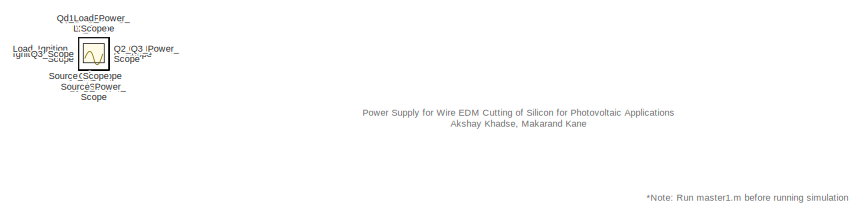
[diagram: root canvas - part 1/4, top left region]
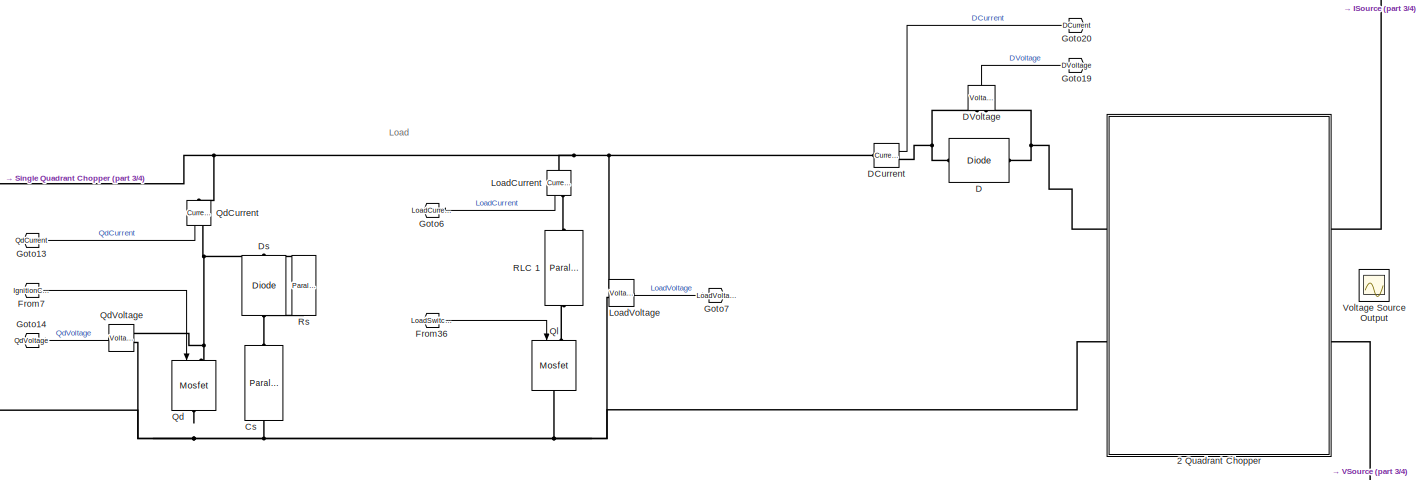
[diagram: root canvas - part 2/4, central region]
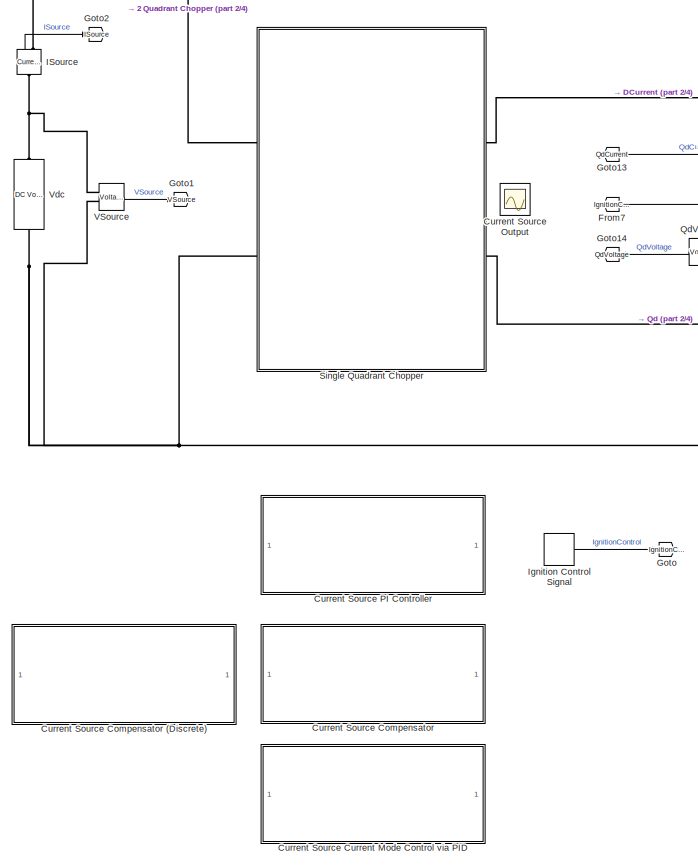
[diagram: root canvas - part 3/4, middle left region]
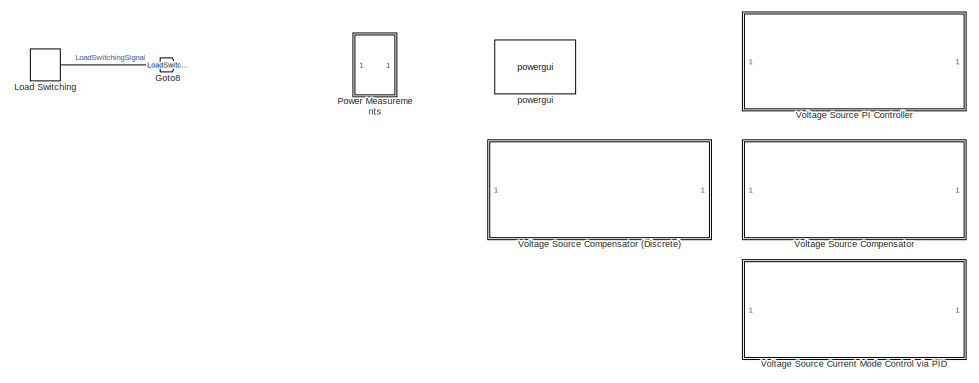
[diagram: root canvas - part 4/4, bottom right region]
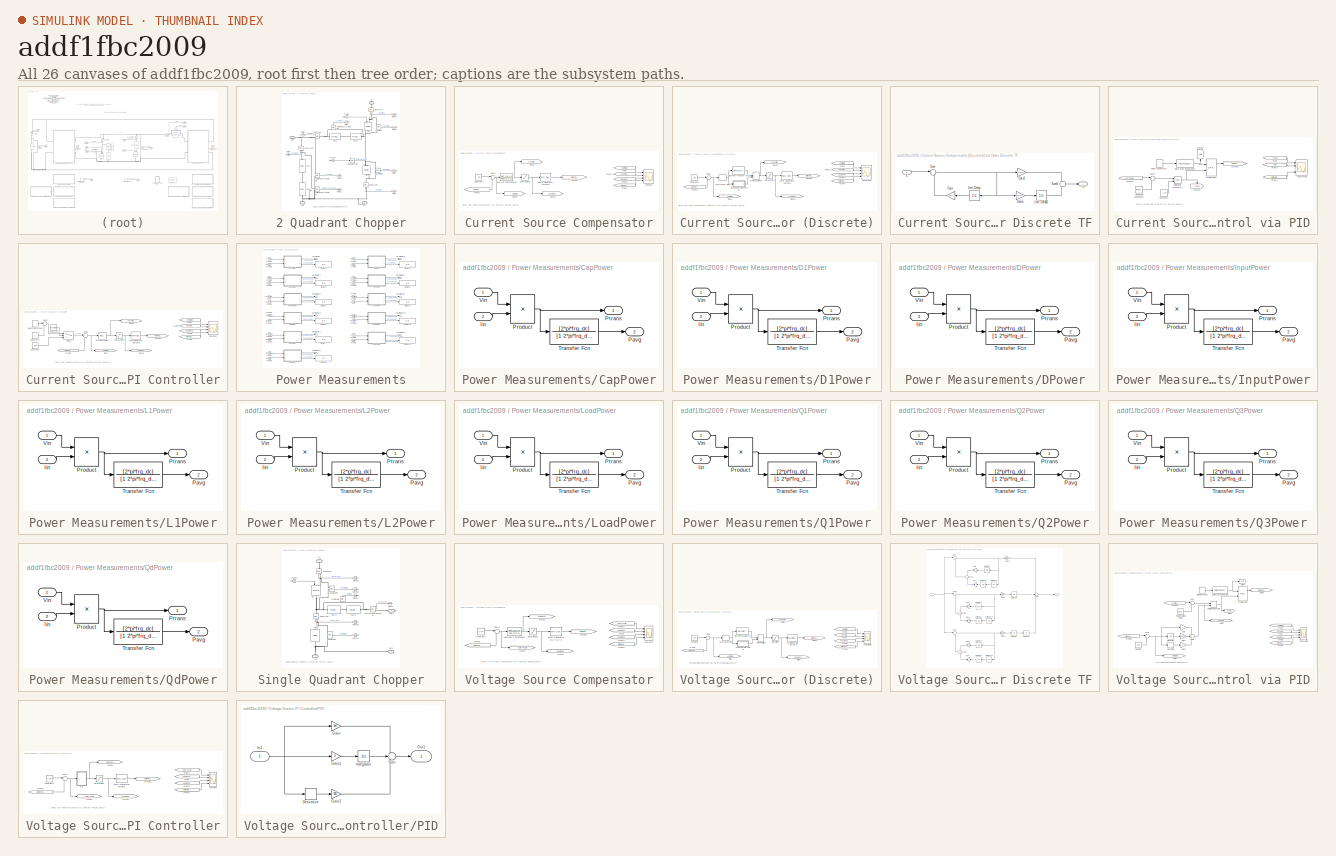
[diagram: thumbnail index - all 26 canvases of the model, root first then tree order]
MODEL slx_addf1fbc2009
KIND model
CONFIG AbsTol = auto
CONFIG FixedStep = auto
CONFIG MaxStep = 4e-7
CONFIG MinStep = 1e-8
CONFIG RelTol = 1e-3
CONFIG SampleTimeConstraint = Unconstrained
CONFIG Solver = ode45
CONFIG SolverMode = Auto
CONFIG SolverName = ode45
CONFIG StartTime = 0.0
CONFIG StopTime = 200*T_mach
BLOCK [Reference]  RLC 1  REF=powerlib/Elements/Parallel RLC Branch
  AttributesFormatString = \n
  Ports = [0, 0, 0, 0, 0, 1, 1]
  SourceBlock = powerlib/Elements/Parallel RLC Branch
  SourceType = Parallel RLC Branch
BLOCK [Reference]  Rs  REF=powerlib/Elements/Parallel RLC Branch
  AttributesFormatString = \n
  Commented = on
  Ports = [0, 0, 0, 0, 0, 1, 1]
  SourceBlock = powerlib/Elements/Parallel RLC Branch
  SourceType = Parallel RLC Branch
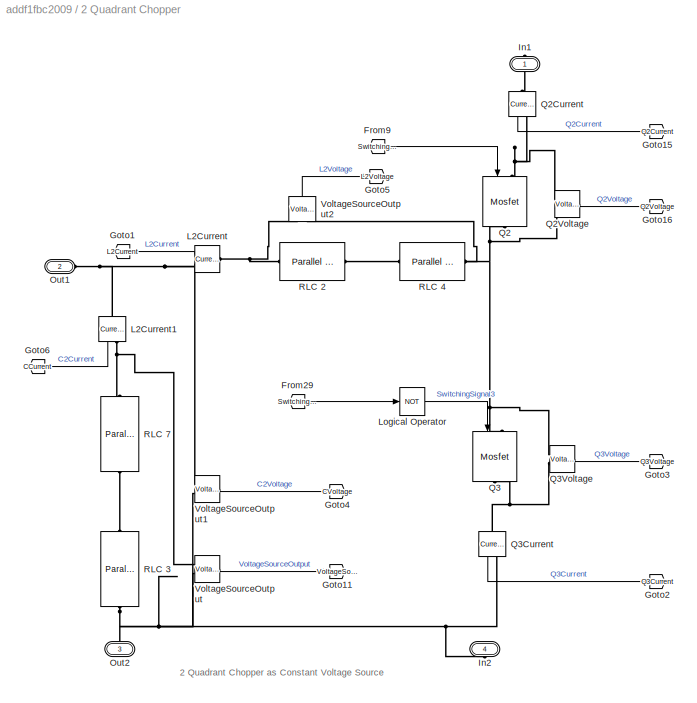
BLOCK [SubSystem] 2 Quadrant Chopper
  Ports = [0, 0, 0, 0, 0, 2, 2]
  RequestExecContextInheritance = off
  Variant = off
BLOCK [Reference] 2 Quadrant Chopper/ RLC 2  REF=powerlib/Elements/Parallel RLC Branch
  AttributesFormatString = \n
  Ports = [0, 0, 0, 0, 0, 1, 1]
  SourceBlock = powerlib/Elements/Parallel RLC Branch
  SourceType = Parallel RLC Branch
BLOCK [Reference] 2 Quadrant Chopper/ RLC 3  REF=powerlib/Elements/Parallel RLC Branch
  AttributesFormatString = \n
  Ports = [0, 0, 0, 0, 0, 1, 1]
  SourceBlock = powerlib/Elements/Parallel RLC Branch
  SourceType = Parallel RLC Branch
BLOCK [Reference] 2 Quadrant Chopper/ RLC 4  REF=powerlib/Elements/Parallel RLC Branch
  AttributesFormatString = \n
  Ports = [0, 0, 0, 0, 0, 1, 1]
  SourceBlock = powerlib/Elements/Parallel RLC Branch
  SourceType = Parallel RLC Branch
BLOCK [Reference] 2 Quadrant Chopper/ RLC 7  REF=powerlib/Elements/Parallel RLC Branch
  AttributesFormatString = \n
  Ports = [0, 0, 0, 0, 0, 1, 1]
  SourceBlock = powerlib/Elements/Parallel RLC Branch
  SourceType = Parallel RLC Branch
BLOCK [From] 2 Quadrant Chopper/From29
  GotoTag = SwitchingSignal2
  TagVisibility = global
BLOCK [From] 2 Quadrant Chopper/From9
  GotoTag = SwitchingSignal2
  TagVisibility = global
BLOCK [Goto] 2 Quadrant Chopper/Goto1
  GotoTag = L2Current
  TagVisibility = global
BLOCK [Goto] 2 Quadrant Chopper/Goto11
  GotoTag = VoltageSourceOutput
  TagVisibility = global
BLOCK [Goto] 2 Quadrant Chopper/Goto15
  GotoTag = Q2Current
  TagVisibility = global
BLOCK [Goto] 2 Quadrant Chopper/Goto16
  GotoTag = Q2Voltage
  TagVisibility = global
BLOCK [Goto] 2 Quadrant Chopper/Goto2
  GotoTag = Q3Current
  TagVisibility = global
BLOCK [Goto] 2 Quadrant Chopper/Goto3
  GotoTag = Q3Voltage
  TagVisibility = global
BLOCK [Goto] 2 Quadrant Chopper/Goto4
  GotoTag = CVoltage
  TagVisibility = global
BLOCK [Goto] 2 Quadrant Chopper/Goto5
  GotoTag = L2Voltage
  TagVisibility = global
BLOCK [Goto] 2 Quadrant Chopper/Goto6
  GotoTag = CCurrent
  TagVisibility = global
BLOCK [PMIOPort] 2 Quadrant Chopper/In1
  Port = 1
  Side = Right
BLOCK [PMIOPort] 2 Quadrant Chopper/In2
  Port = 4
  Side = Right
BLOCK [Reference] 2 Quadrant Chopper/L2Current  REF=powerlib/Measurements/Current Measurement
  Ports = [0, 1, 0, 0, 0, 1, 1]
  SourceBlock = powerlib/Measurements/Current Measurement
  SourceType = Current Measurement
  UserDataPersistent = on
BLOCK [Reference] 2 Quadrant Chopper/L2Current1  REF=powerlib/Measurements/Current Measurement
  Ports = [0, 1, 0, 0, 0, 1, 1]
  SourceBlock = powerlib/Measurements/Current Measurement
  SourceType = Current Measurement
  UserDataPersistent = on
BLOCK [Logic] 2 Quadrant Chopper/Logical Operator
  AllPortsSameDT = off
  Operator = NOT
  OutDataTypeStr = boolean
  Ports = [1, 1]
BLOCK [PMIOPort] 2 Quadrant Chopper/Out1
  Port = 2
  Side = Left
BLOCK [PMIOPort] 2 Quadrant Chopper/Out2
  Port = 3
  Side = Left
BLOCK [Reference] 2 Quadrant Chopper/Q2  REF=powerlib/Power
Electronics/Mosfet
  Ports = [1, 0, 0, 0, 0, 1, 1]
  SourceBlock = powerlib/Power\nElectronics/Mosfet
  SourceType = Mosfet
BLOCK [Reference] 2 Quadrant Chopper/Q2Current  REF=powerlib/Measurements/Current Measurement
  Ports = [0, 1, 0, 0, 0, 1, 1]
  SourceBlock = powerlib/Measurements/Current Measurement
  SourceType = Current Measurement
  UserDataPersistent = on
BLOCK [Reference] 2 Quadrant Chopper/Q2Voltage  REF=powerlib/Measurements/Voltage Measurement
  Ports = [0, 1, 0, 0, 0, 2]
  SourceBlock = powerlib/Measurements/Voltage Measurement
  SourceType = Voltage Measurement
BLOCK [Reference] 2 Quadrant Chopper/Q3  REF=powerlib/Power
Electronics/Mosfet
  Ports = [1, 0, 0, 0, 0, 1, 1]
  SourceBlock = powerlib/Power\nElectronics/Mosfet
  SourceType = Mosfet
BLOCK [Reference] 2 Quadrant Chopper/Q3Current  REF=powerlib/Measurements/Current Measurement
  Ports = [0, 1, 0, 0, 0, 1, 1]
  SourceBlock = powerlib/Measurements/Current Measurement
  SourceType = Current Measurement
  UserDataPersistent = on
BLOCK [Reference] 2 Quadrant Chopper/Q3Voltage  REF=powerlib/Measurements/Voltage Measurement
  Ports = [0, 1, 0, 0, 0, 2]
  SourceBlock = powerlib/Measurements/Voltage Measurement
  SourceType = Voltage Measurement
BLOCK [Reference] 2 Quadrant Chopper/VoltageSourceOutput  REF=powerlib/Measurements/Voltage Measurement
  Ports = [0, 1, 0, 0, 0, 2]
  SourceBlock = powerlib/Measurements/Voltage Measurement
  SourceType = Voltage Measurement
BLOCK [Reference] 2 Quadrant Chopper/VoltageSourceOutput1  REF=powerlib/Measurements/Voltage Measurement
  Ports = [0, 1, 0, 0, 0, 2]
  SourceBlock = powerlib/Measurements/Voltage Measurement
  SourceType = Voltage Measurement
BLOCK [Reference] 2 Quadrant Chopper/VoltageSourceOutput2  REF=powerlib/Measurements/Voltage Measurement
  Ports = [0, 1, 0, 0, 0, 2]
  SourceBlock = powerlib/Measurements/Voltage Measurement
  SourceType = Voltage Measurement
BLOCK [Scope] C2_Scope
  IOType = viewer
  Ports = []
  ScopeSpecificationString = Simulink.scopes.TimeScopeBlockCfg('CurrentConfiguration', extmgr.ConfigurationSet(extmgr.Configuration('Core','General UI',true,'FigureColor',[1 1 1]),extmgr.Configuration('Core','Source UI',true),extmgr.Configuration('Sources','WiredSimulink',true,'DataLoggingVariableName','ScopeData13'),extmgr.Configuration('Visuals','Time Domain',true,'SerializedDisplays',{struct('MinYLimReal','-15.06251','MaxY...<+2339ch>
BLOCK [Reference] Cs  REF=powerlib/Elements/Parallel RLC Branch
  AttributesFormatString = \n
  Commented = on
  Ports = [0, 0, 0, 0, 0, 1, 1]
  SourceBlock = powerlib/Elements/Parallel RLC Branch
  SourceType = Parallel RLC Branch
BLOCK [SubSystem] Current Source Compensator
  Commented = on
  Ports = []
  RequestExecContextInheritance = off
  Variant = off
BLOCK [SubSystem] Current Source Compensator (Discrete)
  Commented = on
  Ports = []
  RequestExecContextInheritance = off
  Variant = off
BLOCK [SubSystem] Current Source Compensator (Discrete)/2nd Order Discrete TF
  Ports = [1, 1]
  RequestExecContextInheritance = off
  Variant = off
BLOCK [Gain] Current Source Compensator (Discrete)/2nd Order Discrete TF/Gain
  Gain = tfj/tfi
  OutDataTypeStr = Inherit: Inherit via internal rule
  ParamDataTypeStr = Inherit: Inherit via internal rule
  SaturateOnIntegerOverflow = off
BLOCK [Gain] Current Source Compensator (Discrete)/2nd Order Discrete TF/Gain2
  Gain = tfg/tfi
  OutDataTypeStr = Inherit: Inherit via internal rule
  ParamDataTypeStr = Inherit: Inherit via internal rule
  SaturateOnIntegerOverflow = off
BLOCK [Gain] Current Source Compensator (Discrete)/2nd Order Discrete TF/Gain5
  Gain = tfh/tfi
  OutDataTypeStr = Inherit: Inherit via internal rule
  ParamDataTypeStr = Inherit: Inherit via internal rule
  SaturateOnIntegerOverflow = off
BLOCK [Sum] Current Source Compensator (Discrete)/2nd Order Discrete TF/Sum
  IconShape = round
  InputSameDT = off
  Inputs = |+-
  OutDataTypeStr = Inherit: Inherit via internal rule
  Ports = [2, 1]
  SaturateOnIntegerOverflow = off
BLOCK [Sum] Current Source Compensator (Discrete)/2nd Order Discrete TF/Sum6
  IconShape = round
  InputSameDT = off
  OutDataTypeStr = Inherit: Inherit via internal rule
  Ports = [2, 1]
  SaturateOnIntegerOverflow = off
BLOCK [UnitDelay] Current Source Compensator (Discrete)/2nd Order Discrete TF/Unit Delay
  InputProcessing = Elements as channels (sample based)
  SampleTime = -1
BLOCK [UnitDelay] Current Source Compensator (Discrete)/2nd Order Discrete TF/Unit Delay6
  InputProcessing = Elements as channels (sample based)
  SampleTime = -1
BLOCK [Inport] Current Source Compensator (Discrete)/2nd Order Discrete TF/X
  IconDisplay = Port number
BLOCK [Outport] Current Source Compensator (Discrete)/2nd Order Discrete TF/Y
  IconDisplay = Port number
BLOCK [Scope] Current Source Compensator (Discrete)/CSCompDis
  NumInputPorts = 4
  Ports = [4]
  ScopeSpecificationString = Simulink.scopes.TimeScopeBlockCfg('CurrentConfiguration', extmgr.ConfigurationSet(extmgr.Configuration('Core','General UI',true,'FigureColor',[1 1 1]),extmgr.Configuration('Core','Source UI',true),extmgr.Configuration('Sources','WiredSimulink',true,'DataLoggingVariableName','ScopeData1'),extmgr.Configuration('Visuals','Time Domain',true,'SerializedDisplays',{struct('MinYLimReal','-3.58552','MaxYLi...<+4085ch>
BLOCK [Constant] Current Source Compensator (Discrete)/Constant4
  Value = I_ref
BLOCK [DiscreteTransferFcn] Current Source Compensator (Discrete)/Discrete Transfer Fcn
  Denominator = dis_den_c1{1,1}
  InputPortMap = u0
  Numerator = dis_num_c1{1,1}
  Ports = [1, 1]
BLOCK [From] Current Source Compensator (Discrete)/From
  GotoTag = CSErrorSig
BLOCK [From] Current Source Compensator (Discrete)/From1
  GotoTag = CSControlSig
BLOCK [From] Current Source Compensator (Discrete)/From2
  GotoTag = CurrentSourceOutput
  TagVisibility = global
BLOCK [From] Current Source Compensator (Discrete)/From3
  GotoTag = CSSatControlSig
BLOCK [From] Current Source Compensator (Discrete)/From4
  GotoTag = SwitchingSignal1
  TagVisibility = global
BLOCK [Goto] Current Source Compensator (Discrete)/Goto
  GotoTag = CSErrorSig
BLOCK [Goto] Current Source Compensator (Discrete)/Goto1
  GotoTag = CSControlSig
BLOCK [Goto] Current Source Compensator (Discrete)/Goto2
  GotoTag = CSSatControlSig
BLOCK [Goto] Current Source Compensator (Discrete)/Goto24
  GotoTag = SwitchingSignal1
  TagVisibility = global
BLOCK [ManualSwitch] Current Source Compensator (Discrete)/Manual Switch
  CurrentSetting = 0
BLOCK [Reference] Current Source Compensator (Discrete)/PWM Generator (DC-DC)3  REF=powerlib_meascontrol/Pulse & Signal
Generators/PWM Generator
(DC-DC)
  Ports = [1, 1]
  SourceBlock = powerlib_meascontrol/Pulse & Signal\nGenerators/PWM Generator\n(DC-DC)
  SourceType = PWM Generator (DC-DC)
BLOCK [Saturate] Current Source Compensator (Discrete)/Saturation3
  InputPortMap = u0
  LowerLimit = 0
  Ports = [1, 1]
  UpperLimit = 0.99
BLOCK [Sum] Current Source Compensator (Discrete)/Sum5
  IconShape = round
  InputSameDT = off
  Inputs = |+-
  OutDataTypeStr = Inherit: Inherit via internal rule
  Ports = [2, 1]
  SaturateOnIntegerOverflow = off
BLOCK [ZeroOrderHold] Current Source Compensator (Discrete)/Zero-Order Hold
  SampleTime = 1/f_sw
BLOCK [Scope] Current Source Compensator/CSComp
  NumInputPorts = 4
  Ports = [4]
  ScopeSpecificationString = Simulink.scopes.TimeScopeBlockCfg('CurrentConfiguration', extmgr.ConfigurationSet(extmgr.Configuration('Core','General UI',true,'FigureColor',[1 1 1]),extmgr.Configuration('Core','Source UI',true),extmgr.Configuration('Sources','WiredSimulink',true,'DataLoggingVariableName','ScopeData3'),extmgr.Configuration('Visuals','Time Domain',true,'SerializedDisplays',{struct('MinYLimReal','-3.02338','MaxYLi...<+4088ch>
BLOCK [Constant] Current Source Compensator/Constant4
  Value = I_ref
BLOCK [From] Current Source Compensator/From
  GotoTag = CSErrorSig
  TagVisibility = global
BLOCK [From] Current Source Compensator/From1
  GotoTag = CSControlSig
  TagVisibility = global
BLOCK [From] Current Source Compensator/From2
  GotoTag = CurrentSourceOutput
  TagVisibility = global
BLOCK [From] Current Source Compensator/From3
  GotoTag = CSSatControlSig
  TagVisibility = global
BLOCK [From] Current Source Compensator/From4
  GotoTag = SwitchingSignal1
  TagVisibility = global
BLOCK [Goto] Current Source Compensator/Goto1
  GotoTag = CSControlSig
  TagVisibility = global
BLOCK [Goto] Current Source Compensator/Goto2
  GotoTag = CSSatControlSig
  TagVisibility = global
BLOCK [Goto] Current Source Compensator/Goto24
  GotoTag = SwitchingSignal1
  TagVisibility = global
BLOCK [Goto] Current Source Compensator/Goto3
  GotoTag = CSErrorSig
  TagVisibility = global
BLOCK [TransferFcn] Current Source Compensator/Lead-Lag Compensator
  Denominator = den_c1{1,1}
  Numerator = num_c1{1,1}
BLOCK [Reference] Current Source Compensator/PWM Generator (DC-DC)3  REF=powerlib_meascontrol/Pulse & Signal
Generators/PWM Generator
(DC-DC)
  Ports = [1, 1]
  SourceBlock = powerlib_meascontrol/Pulse & Signal\nGenerators/PWM Generator\n(DC-DC)
  SourceType = PWM Generator (DC-DC)
BLOCK [Saturate] Current Source Compensator/Saturation3
  InputPortMap = u0
  LowerLimit = 0
  Ports = [1, 1]
  UpperLimit = 0.99
BLOCK [Sum] Current Source Compensator/Sum5
  IconShape = round
  InputSameDT = off
  Inputs = |+-
  OutDataTypeStr = Inherit: Inherit via internal rule
  Ports = [2, 1]
  SaturateOnIntegerOverflow = off
BLOCK [SubSystem] Current Source Current Mode Control via PID
  Commented = on
  Ports = []
  RequestExecContextInheritance = off
  Variant = off
BLOCK [Scope] Current Source Current Mode Control via PID/CSCurrMod
  NumInputPorts = 4
  Ports = [4]
  ScopeSpecificationString = Simulink.scopes.TimeScopeBlockCfg('CurrentConfiguration', extmgr.ConfigurationSet(extmgr.Configuration('Core','General UI',true,'FigureColor',[1 1 1]),extmgr.Configuration('Core','Source UI',true),extmgr.Configuration('Sources','WiredSimulink',true,'DataLoggingVariableName','ScopeData4'),extmgr.Configuration('Visuals','Time Domain',true,'SerializedDisplays',{struct('MinYLimReal','-0.125','MaxYLimR...<+4058ch>
BLOCK [Constant] Current Source Current Mode Control via PID/Constant1
  Value = I_ref
BLOCK [DataTypeConversion] Current Source Current Mode Control via PID/Data Type Conversion1
  RndMeth = Floor
  SaturateOnIntegerOverflow = off
BLOCK [From] Current Source Current Mode Control via PID/From
  GotoTag = reset1
  TagVisibility = global
BLOCK [From] Current Source Current Mode Control via PID/From1
  GotoTag = set1
  TagVisibility = global
BLOCK [From] Current Source Current Mode Control via PID/From27
  GotoTag = CurrentSourceOutput
  TagVisibility = global
BLOCK [From] Current Source Current Mode Control via PID/From4
  GotoTag = SwitchingSignal1
  TagVisibility = global
BLOCK [Goto] Current Source Current Mode Control via PID/Goto10
  GotoTag = SwitchingSignal1
  TagVisibility = global
BLOCK [Goto] Current Source Current Mode Control via PID/Goto11
  GotoTag = set1
  TagVisibility = global
BLOCK [Goto] Current Source Current Mode Control via PID/Goto12
  GotoTag = reset1
  TagVisibility = global
BLOCK [DiscretePulseGenerator] Current Source Current Mode Control via PID/Pulse Generator1
  Period = 1/f_sw
  Ports = [0, 1]
  PulseType = Time based
  PulseWidth = 5
BLOCK [RelationalOperator] Current Source Current Mode Control via PID/Relational Operator1
  InputSameDT = off
  OutDataTypeStr = boolean
  Ports = [2, 1]
BLOCK [Reference] Current Source Current Mode Control via PID/Repeating Sequence1  REF=simulink/Sources/Repeating
Sequence
  Ports = [0, 1]
  SourceBlock = simulink/Sources/Repeating\nSequence
  SourceType = Repeating table
BLOCK [Reference] Current Source Current Mode Control via PID/S-R Flip-Flop1  REF=simulink_extras/Flip Flops/S-R
Flip-Flop
  Ports = [2, 2]
  SourceBlock = simulink_extras/Flip Flops/S-R\nFlip-Flop
  SourceType = SRFlipFlop
BLOCK [Sum] Current Source Current Mode Control via PID/Sum3
  IconShape = round
  InputSameDT = off
  Inputs = |++
  OutDataTypeStr = Inherit: Inherit via internal rule
  Ports = [2, 1]
  SaturateOnIntegerOverflow = off
BLOCK [Scope] Current Source Output
  Floating = on
  Ports = []
  ScopeSpecificationString = Simulink.scopes.TimeScopeBlockCfg('CurrentConfiguration', extmgr.ConfigurationSet(extmgr.Configuration('Core','General UI',true,'FigureColor',[1 1 1]),extmgr.Configuration('Core','Source UI',true),extmgr.Configuration('Sources','WiredSimulink',true,'DataLoggingVariableName','ScopeData17'),extmgr.Configuration('Visuals','Time Domain',true,'SerializedDisplays',{struct('MinYLimReal','-1.25','MaxYLimR...<+1564ch>
BLOCK [SubSystem] Current Source PI Controller
  Ports = []
  RequestExecContextInheritance = off
  Variant = off
BLOCK [Scope] Current Source PI Controller/CSPICont
  NumInputPorts = 4
  Ports = [4]
  ScopeSpecificationString = Simulink.scopes.TimeScopeBlockCfg('CurrentConfiguration', extmgr.ConfigurationSet(extmgr.Configuration('Core','General UI',true,'FigureColor',[1 1 1]),extmgr.Configuration('Core','Source UI',true),extmgr.Configuration('Sources','WiredSimulink',true,'DataLoggingVariableName','ScopeData2'),extmgr.Configuration('Visuals','Time Domain',true,'SerializedDisplays',{struct('MinYLimReal','-1.25','MaxYLimRe...<+4069ch>
BLOCK [Constant] Current Source PI Controller/Constant1
  Value = 2
BLOCK [Constant] Current Source PI Controller/Constant2
  Value = pulsedRefMode
BLOCK [Constant] Current Source PI Controller/Constant4
  Value = I_ref
BLOCK [From] Current Source PI Controller/From
  GotoTag = CSErrorSig
BLOCK [From] Current Source PI Controller/From1
  GotoTag = CSControlSig
BLOCK [From] Current Source PI Controller/From2
  GotoTag = CurrentSourceOutput
  TagVisibility = global
BLOCK [From] Current Source PI Controller/From3
  GotoTag = CSSatControlSig
BLOCK [From] Current Source PI Controller/From4
  GotoTag = SwitchingSignal1
  TagVisibility = global
BLOCK [Goto] Current Source PI Controller/Goto
  GotoTag = CSErrorSig
BLOCK [Goto] Current Source PI Controller/Goto1
  GotoTag = CSControlSig
BLOCK [Goto] Current Source PI Controller/Goto2
  GotoTag = CSSatControlSig
BLOCK [Goto] Current Source PI Controller/Goto24
  GotoTag = SwitchingSignal1
  TagVisibility = global
BLOCK [Reference] Current Source PI Controller/PID Controller1  REF=simulink/Continuous/PID Controller
  Ports = [1, 1]
  SourceBlock = simulink/Continuous/PID Controller
  SourceType = PID 1dof
BLOCK [Reference] Current Source PI Controller/PWM Generator (DC-DC)3  REF=powerlib_meascontrol/Pulse & Signal
Generators/PWM Generator
(DC-DC)
  Ports = [1, 1]
  SourceBlock = powerlib_meascontrol/Pulse & Signal\nGenerators/PWM Generator\n(DC-DC)
  SourceType = PWM Generator (DC-DC)
BLOCK [DiscretePulseGenerator] Current Source PI Controller/Pulsed Reference
  Amplitude = 8
  Period = T_mach
  Ports = [0, 1]
  PulseType = Time based
  PulseWidth = duty
BLOCK [Saturate] Current Source PI Controller/Saturation3
  InputPortMap = u0
  LowerLimit = 0
  Ports = [1, 1]
  UpperLimit = 0.99
BLOCK [Sum] Current Source PI Controller/Sum2
  IconShape = round
  InputSameDT = off
  Inputs = |++
  OutDataTypeStr = Inherit: Inherit via internal rule
  Ports = [2, 1]
  SaturateOnIntegerOverflow = off
BLOCK [Sum] Current Source PI Controller/Sum5
  IconShape = round
  InputSameDT = off
  Inputs = |+-
  OutDataTypeStr = Inherit: Inherit via internal rule
  Ports = [2, 1]
  SaturateOnIntegerOverflow = off
BLOCK [Switch] Current Source PI Controller/Switch
  Criteria = u2 > Threshold
  InputSameDT = off
  SaturateOnIntegerOverflow = off
BLOCK [Reference] D  REF=powerlib/Power
Electronics/Diode
  Ports = [0, 0, 0, 0, 0, 1, 1]
  SourceBlock = powerlib/Power\nElectronics/Diode
  SourceType = Diode
BLOCK [Scope] D1_Scope
  IOType = viewer
  Ports = []
  ScopeSpecificationString = Simulink.scopes.TimeScopeBlockCfg('CurrentConfiguration', extmgr.ConfigurationSet(extmgr.Configuration('Core','General UI',true,'FigureColor',[1 1 1]),extmgr.Configuration('Core','Source UI',true),extmgr.Configuration('Sources','WiredSimulink',true,'DataLoggingVariableName','ScopeData7'),extmgr.Configuration('Visuals','Time Domain',true,'SerializedDisplays',{struct('MinYLimReal','-14.66126','MaxYL...<+2404ch>
BLOCK [Reference] DCurrent  REF=powerlib/Measurements/Current Measurement
  Ports = [0, 1, 0, 0, 0, 1, 1]
  SourceBlock = powerlib/Measurements/Current Measurement
  SourceType = Current Measurement
  UserDataPersistent = on
BLOCK [Reference] DVoltage  REF=powerlib/Measurements/Voltage Measurement
  Ports = [0, 1, 0, 0, 0, 2]
  SourceBlock = powerlib/Measurements/Voltage Measurement
  SourceType = Voltage Measurement
BLOCK [Scope] D_D1_Power_Scope
  IOType = viewer
  Ports = []
  ScopeSpecificationString = Simulink.scopes.TimeScopeBlockCfg('CurrentConfiguration', extmgr.ConfigurationSet(extmgr.Configuration('Core','General UI',true,'FigureColor',[1 1 1]),extmgr.Configuration('Core','Source UI',true),extmgr.Configuration('Sources','WiredSimulink',true,'DataLoggingVariableName','ScopeData3'),extmgr.Configuration('Visuals','Time Domain',true,'SerializedDisplays',{struct('MinYLimReal','-1.01326','MaxYLi...<+4043ch>
BLOCK [Scope] D_Scope
  IOType = viewer
  Ports = []
  ScopeSpecificationString = Simulink.scopes.TimeScopeBlockCfg('CurrentConfiguration', extmgr.ConfigurationSet(extmgr.Configuration('Core','General UI',true,'FigureColor',[1 1 1]),extmgr.Configuration('Core','Source UI',true),extmgr.Configuration('Sources','WiredSimulink',true,'DataLoggingVariableName','ScopeData9'),extmgr.Configuration('Visuals','Time Domain',true,'SerializedDisplays',{struct('MinYLimReal','-134.5402','MaxYL...<+2347ch>
BLOCK [Reference] Ds  REF=powerlib/Power
Electronics/Diode
  Commented = on
  Ports = [0, 0, 0, 0, 0, 1, 1]
  SourceBlock = powerlib/Power\nElectronics/Diode
  SourceType = Diode
BLOCK [From] From36
  GotoTag = LoadSwitchingSignal
  TagVisibility = global
BLOCK [From] From7
  GotoTag = IgnitionControl
  TagVisibility = global
BLOCK [Goto] Goto
  GotoTag = IgnitionControl
  TagVisibility = global
BLOCK [Goto] Goto1
  GotoTag = VSource
  TagVisibility = global
BLOCK [Goto] Goto13
  GotoTag = QdCurrent
  TagVisibility = global
BLOCK [Goto] Goto14
  GotoTag = QdVoltage
  TagVisibility = global
BLOCK [Goto] Goto19
  GotoTag = DVoltage
  TagVisibility = global
BLOCK [Goto] Goto2
  GotoTag = ISource
  TagVisibility = global
BLOCK [Goto] Goto20
  GotoTag = DCurrent
  TagVisibility = global
BLOCK [Goto] Goto6
  GotoTag = LoadCurrent
  TagVisibility = global
BLOCK [Goto] Goto7
  GotoTag = LoadVoltage
  TagVisibility = global
BLOCK [Goto] Goto8
  GotoTag = LoadSwitchingSignal
  TagVisibility = global
BLOCK [Reference] ISource  REF=powerlib/Measurements/Current Measurement
  Ports = [0, 1, 0, 0, 0, 1, 1]
  SourceBlock = powerlib/Measurements/Current Measurement
  SourceType = Current Measurement
  UserDataPersistent = on
BLOCK [DiscretePulseGenerator] Ignition Control Signal
  Period = T_mach
  PhaseDelay = t2 + delayVC
  Ports = [0, 1]
  PulseType = Time based
  PulseWidth = duty_inv
BLOCK [Scope] Ignition_Scope
  IOType = viewer
  Ports = []
  ScopeSpecificationString = Simulink.scopes.TimeScopeBlockCfg('CurrentConfiguration', extmgr.ConfigurationSet(extmgr.Configuration('Core','General UI',true,'FigureColor',[1 1 1]),extmgr.Configuration('Core','Source UI',true),extmgr.Configuration('Sources','WiredSimulink',true,'DataLoggingVariableName','ScopeData1'),extmgr.Configuration('Visuals','Time Domain',true,'SerializedDisplays',{struct('MinYLimReal','-0.125','MaxYLimR...<+2362ch>
BLOCK [Scope] L1_C2_Power_Scope
  IOType = viewer
  Ports = []
  ScopeSpecificationString = Simulink.scopes.TimeScopeBlockCfg('CurrentConfiguration', extmgr.ConfigurationSet(extmgr.Configuration('Core','General UI',true,'FigureColor',[1 1 1]),extmgr.Configuration('Core','Source UI',true),extmgr.Configuration('Sources','WiredSimulink',true,'DataLoggingVariableName','ScopeData20'),extmgr.Configuration('Visuals','Time Domain',true,'SerializedDisplays',{struct('MinYLimReal','-1315.07898','Ma...<+4077ch>
BLOCK [Scope] L1_Scope
  IOType = viewer
  Ports = []
  ScopeSpecificationString = Simulink.scopes.TimeScopeBlockCfg('CurrentConfiguration', extmgr.ConfigurationSet(extmgr.Configuration('Core','General UI',true,'FigureColor',[1 1 1]),extmgr.Configuration('Core','Source UI',true),extmgr.Configuration('Sources','WiredSimulink',true,'DataLoggingVariableName','ScopeData5'),extmgr.Configuration('Visuals','Time Domain',true,'SerializedDisplays',{struct('MinYLimReal','-280.18696','MaxY...<+2345ch>
BLOCK [Scope] L2_Scope
  IOType = viewer
  Ports = []
  ScopeSpecificationString = Simulink.scopes.TimeScopeBlockCfg('CurrentConfiguration', extmgr.ConfigurationSet(extmgr.Configuration('Core','General UI',true,'FigureColor',[1 1 1]),extmgr.Configuration('Core','Source UI',true),extmgr.Configuration('Sources','WiredSimulink',true,'DataLoggingVariableName','ScopeData10'),extmgr.Configuration('Visuals','Time Domain',true,'SerializedDisplays',{struct('MinYLimReal','-138.81242','Max...<+2336ch>
BLOCK [DiscretePulseGenerator] Load Switching
  Period = T_mach
  PhaseDelay = delay_load + delayVC
  Ports = [0, 1]
  PulseType = Time based
  PulseWidth = duty_load
BLOCK [Reference] LoadCurrent  REF=powerlib/Measurements/Current Measurement
  Ports = [0, 1, 0, 0, 0, 1, 1]
  SourceBlock = powerlib/Measurements/Current Measurement
  SourceType = Current Measurement
  UserDataPersistent = on
BLOCK [Reference] LoadVoltage  REF=powerlib/Measurements/Voltage Measurement
  Ports = [0, 1, 0, 0, 0, 2]
  SourceBlock = powerlib/Measurements/Voltage Measurement
  SourceType = Voltage Measurement
BLOCK [Scope] Load_Ignition_Scope
  IOType = viewer
  Ports = []
  ScopeSpecificationString = Simulink.scopes.TimeScopeBlockCfg('CurrentConfiguration', extmgr.ConfigurationSet(extmgr.Configuration('Core','General UI',true,'FigureColor',[1 1 1]),extmgr.Configuration('Core','Source UI',true),extmgr.Configuration('Sources','WiredSimulink',true,'DataLoggingVariableName','ScopeData1'),extmgr.Configuration('Visuals','Time Domain',true,'SerializedDisplays',{struct('MinYLimReal','-0.125','MaxYLimR...<+3272ch>
BLOCK [Scope] Load_Scope
  IOType = viewer
  Ports = []
  ScopeSpecificationString = Simulink.scopes.TimeScopeBlockCfg('CurrentConfiguration', extmgr.ConfigurationSet(extmgr.Configuration('Core','General UI',true,'FigureColor',[1 1 1]),extmgr.Configuration('Core','Source UI',true),extmgr.Configuration('Sources','WiredSimulink',true,'DataLoggingVariableName','ScopeData2'),extmgr.Configuration('Visuals','Time Domain',true,'SerializedDisplays',{struct('MinYLimReal','-15.13754','MaxYL...<+2327ch>
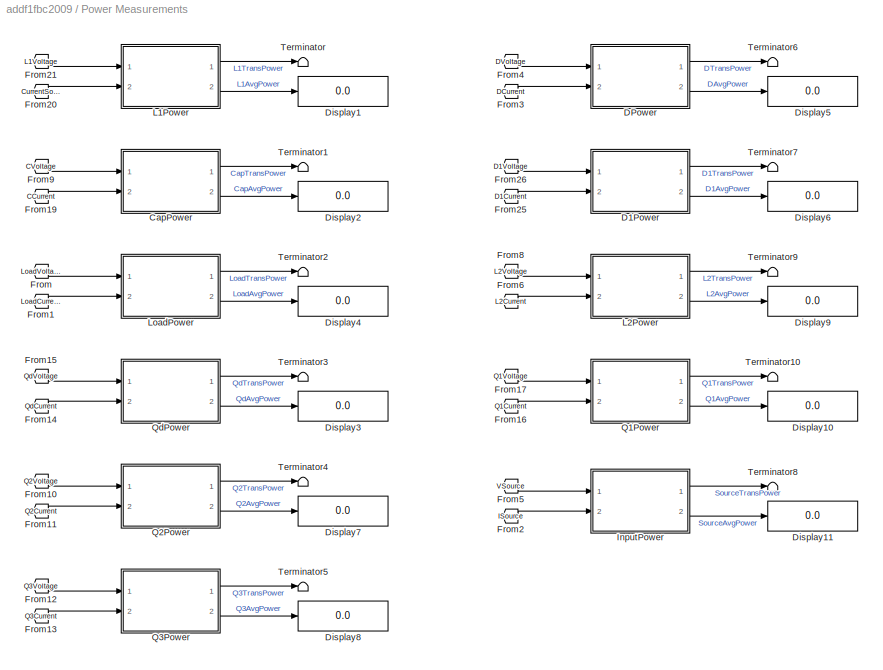
BLOCK [SubSystem] Power Measurements
  Ports = []
  RequestExecContextInheritance = off
  Variant = off
BLOCK [SubSystem] Power Measurements/CapPower
  Ports = [2, 2]
  RequestExecContextInheritance = off
  Variant = off
BLOCK [Inport] Power Measurements/CapPower/Iin
  IconDisplay = Port number
  Port = 2
BLOCK [Outport] Power Measurements/CapPower/Pavg
  IconDisplay = Port number
  Port = 2
BLOCK [Product] Power Measurements/CapPower/Product
  InputSameDT = off
  OutDataTypeStr = Inherit: Inherit via internal rule
  Ports = [2, 1]
  RndMeth = Floor
  SaturateOnIntegerOverflow = off
BLOCK [Outport] Power Measurements/CapPower/Ptrans
  IconDisplay = Port number
BLOCK [TransferFcn] Power Measurements/CapPower/Transfer Fcn
  Denominator = [1 2*pi*frq_dc]
  Numerator = [2*pi*frq_dc]
BLOCK [Inport] Power Measurements/CapPower/Vin
  IconDisplay = Port number
BLOCK [SubSystem] Power Measurements/D1Power
  Ports = [2, 2]
  RequestExecContextInheritance = off
  Variant = off
BLOCK [Inport] Power Measurements/D1Power/Iin
  IconDisplay = Port number
  Port = 2
BLOCK [Outport] Power Measurements/D1Power/Pavg
  IconDisplay = Port number
  Port = 2
BLOCK [Product] Power Measurements/D1Power/Product
  InputSameDT = off
  OutDataTypeStr = Inherit: Inherit via internal rule
  Ports = [2, 1]
  RndMeth = Floor
  SaturateOnIntegerOverflow = off
BLOCK [Outport] Power Measurements/D1Power/Ptrans
  IconDisplay = Port number
BLOCK [TransferFcn] Power Measurements/D1Power/Transfer Fcn
  Denominator = [1 2*pi*frq_dc]
  Numerator = [2*pi*frq_dc]
BLOCK [Inport] Power Measurements/D1Power/Vin
  IconDisplay = Port number
BLOCK [SubSystem] Power Measurements/DPower
  Ports = [2, 2]
  RequestExecContextInheritance = off
  Variant = off
BLOCK [Inport] Power Measurements/DPower/Iin
  IconDisplay = Port number
  Port = 2
BLOCK [Outport] Power Measurements/DPower/Pavg
  IconDisplay = Port number
  Port = 2
BLOCK [Product] Power Measurements/DPower/Product
  InputSameDT = off
  OutDataTypeStr = Inherit: Inherit via internal rule
  Ports = [2, 1]
  RndMeth = Floor
  SaturateOnIntegerOverflow = off
BLOCK [Outport] Power Measurements/DPower/Ptrans
  IconDisplay = Port number
BLOCK [TransferFcn] Power Measurements/DPower/Transfer Fcn
  Denominator = [1 2*pi*frq_dc]
  Numerator = [2*pi*frq_dc]
BLOCK [Inport] Power Measurements/DPower/Vin
  IconDisplay = Port number
BLOCK [Display] Power Measurements/Display1
  Decimation = 1
  Ports = [1]
BLOCK [Display] Power Measurements/Display10
  Decimation = 1
  Ports = [1]
BLOCK [Display] Power Measurements/Display11
  Decimation = 1
  Ports = [1]
BLOCK [Display] Power Measurements/Display2
  Decimation = 1
  Ports = [1]
BLOCK [Display] Power Measurements/Display3
  Decimation = 1
  Ports = [1]
BLOCK [Display] Power Measurements/Display4
  Decimation = 1
  Ports = [1]
BLOCK [Display] Power Measurements/Display5
  Decimation = 1
  Ports = [1]
BLOCK [Display] Power Measurements/Display6
  Decimation = 1
  Ports = [1]
BLOCK [Display] Power Measurements/Display7
  Decimation = 1
  Ports = [1]
BLOCK [Display] Power Measurements/Display8
  Decimation = 1
  Ports = [1]
BLOCK [Display] Power Measurements/Display9
  Decimation = 1
  Ports = [1]
BLOCK [From] Power Measurements/From
  GotoTag = LoadVoltage
  TagVisibility = global
BLOCK [From] Power Measurements/From1
  GotoTag = LoadCurrent
  TagVisibility = global
BLOCK [From] Power Measurements/From10
  GotoTag = Q2Voltage
  TagVisibility = global
BLOCK [From] Power Measurements/From11
  GotoTag = Q2Current
  TagVisibility = global
BLOCK [From] Power Measurements/From12
  GotoTag = Q3Voltage
  TagVisibility = global
BLOCK [From] Power Measurements/From13
  GotoTag = Q3Current
  TagVisibility = global
BLOCK [From] Power Measurements/From14
  GotoTag = QdCurrent
  TagVisibility = global
BLOCK [From] Power Measurements/From15
  GotoTag = QdVoltage
  TagVisibility = global
BLOCK [From] Power Measurements/From16
  GotoTag = Q1Current
  TagVisibility = global
BLOCK [From] Power Measurements/From17
  GotoTag = Q1Voltage
  TagVisibility = global
BLOCK [From] Power Measurements/From19
  GotoTag = CCurrent
  TagVisibility = global
BLOCK [From] Power Measurements/From2
  GotoTag = ISource
  TagVisibility = global
BLOCK [From] Power Measurements/From20
  GotoTag = CurrentSourceOutput
  TagVisibility = global
BLOCK [From] Power Measurements/From21
  GotoTag = L1Voltage
  TagVisibility = global
BLOCK [From] Power Measurements/From25
  GotoTag = D1Current
  TagVisibility = global
BLOCK [From] Power Measurements/From26
  GotoTag = D1Voltage
  TagVisibility = global
BLOCK [From] Power Measurements/From3
  GotoTag = DCurrent
  TagVisibility = global
BLOCK [From] Power Measurements/From4
  GotoTag = DVoltage
  TagVisibility = global
BLOCK [From] Power Measurements/From5
  GotoTag = VSource
  TagVisibility = global
BLOCK [From] Power Measurements/From6
  GotoTag = L2Current
  TagVisibility = global
BLOCK [From] Power Measurements/From8
  GotoTag = L2Voltage
  TagVisibility = global
BLOCK [From] Power Measurements/From9
  GotoTag = CVoltage
  TagVisibility = global
BLOCK [SubSystem] Power Measurements/InputPower
  Ports = [2, 2]
  RequestExecContextInheritance = off
  Variant = off
BLOCK [Inport] Power Measurements/InputPower/Iin
  IconDisplay = Port number
  Port = 2
BLOCK [Outport] Power Measurements/InputPower/Pavg
  IconDisplay = Port number
  Port = 2
BLOCK [Product] Power Measurements/InputPower/Product
  InputSameDT = off
  OutDataTypeStr = Inherit: Inherit via internal rule
  Ports = [2, 1]
  RndMeth = Floor
  SaturateOnIntegerOverflow = off
BLOCK [Outport] Power Measurements/InputPower/Ptrans
  IconDisplay = Port number
BLOCK [TransferFcn] Power Measurements/InputPower/Transfer Fcn
  Denominator = [1 2*pi*frq_dc]
  Numerator = [2*pi*frq_dc]
BLOCK [Inport] Power Measurements/InputPower/Vin
  IconDisplay = Port number
BLOCK [SubSystem] Power Measurements/L1Power
  Ports = [2, 2]
  RequestExecContextInheritance = off
  Variant = off
BLOCK [Inport] Power Measurements/L1Power/Iin
  IconDisplay = Port number
  Port = 2
BLOCK [Outport] Power Measurements/L1Power/Pavg
  IconDisplay = Port number
  Port = 2
BLOCK [Product] Power Measurements/L1Power/Product
  InputSameDT = off
  OutDataTypeStr = Inherit: Inherit via internal rule
  Ports = [2, 1]
  RndMeth = Floor
  SaturateOnIntegerOverflow = off
BLOCK [Outport] Power Measurements/L1Power/Ptrans
  IconDisplay = Port number
BLOCK [TransferFcn] Power Measurements/L1Power/Transfer Fcn
  Denominator = [1 2*pi*frq_dc]
  Numerator = [2*pi*frq_dc]
BLOCK [Inport] Power Measurements/L1Power/Vin
  IconDisplay = Port number
BLOCK [SubSystem] Power Measurements/L2Power
  Ports = [2, 2]
  RequestExecContextInheritance = off
  Variant = off
BLOCK [Inport] Power Measurements/L2Power/Iin
  IconDisplay = Port number
  Port = 2
BLOCK [Outport] Power Measurements/L2Power/Pavg
  IconDisplay = Port number
  Port = 2
BLOCK [Product] Power Measurements/L2Power/Product
  InputSameDT = off
  OutDataTypeStr = Inherit: Inherit via internal rule
  Ports = [2, 1]
  RndMeth = Floor
  SaturateOnIntegerOverflow = off
BLOCK [Outport] Power Measurements/L2Power/Ptrans
  IconDisplay = Port number
BLOCK [TransferFcn] Power Measurements/L2Power/Transfer Fcn
  Denominator = [1 2*pi*frq_dc]
  Numerator = [2*pi*frq_dc]
BLOCK [Inport] Power Measurements/L2Power/Vin
  IconDisplay = Port number
BLOCK [SubSystem] Power Measurements/LoadPower
  Ports = [2, 2]
  RequestExecContextInheritance = off
  Variant = off
BLOCK [Inport] Power Measurements/LoadPower/Iin
  IconDisplay = Port number
  Port = 2
BLOCK [Outport] Power Measurements/LoadPower/Pavg
  IconDisplay = Port number
  Port = 2
BLOCK [Product] Power Measurements/LoadPower/Product
  InputSameDT = off
  OutDataTypeStr = Inherit: Inherit via internal rule
  Ports = [2, 1]
  RndMeth = Floor
  SaturateOnIntegerOverflow = off
BLOCK [Outport] Power Measurements/LoadPower/Ptrans
  IconDisplay = Port number
BLOCK [TransferFcn] Power Measurements/LoadPower/Transfer Fcn
  Denominator = [1 2*pi*frq_dc]
  Numerator = [2*pi*frq_dc]
BLOCK [Inport] Power Measurements/LoadPower/Vin
  IconDisplay = Port number
BLOCK [SubSystem] Power Measurements/Q1Power
  Ports = [2, 2]
  RequestExecContextInheritance = off
  Variant = off
BLOCK [Inport] Power Measurements/Q1Power/Iin
  IconDisplay = Port number
  Port = 2
BLOCK [Outport] Power Measurements/Q1Power/Pavg
  IconDisplay = Port number
  Port = 2
BLOCK [Product] Power Measurements/Q1Power/Product
  InputSameDT = off
  OutDataTypeStr = Inherit: Inherit via internal rule
  Ports = [2, 1]
  RndMeth = Floor
  SaturateOnIntegerOverflow = off
BLOCK [Outport] Power Measurements/Q1Power/Ptrans
  IconDisplay = Port number
BLOCK [TransferFcn] Power Measurements/Q1Power/Transfer Fcn
  Denominator = [1 2*pi*frq_dc]
  Numerator = [2*pi*frq_dc]
BLOCK [Inport] Power Measurements/Q1Power/Vin
  IconDisplay = Port number
BLOCK [SubSystem] Power Measurements/Q2Power
  Ports = [2, 2]
  RequestExecContextInheritance = off
  Variant = off
BLOCK [Inport] Power Measurements/Q2Power/Iin
  IconDisplay = Port number
  Port = 2
BLOCK [Outport] Power Measurements/Q2Power/Pavg
  IconDisplay = Port number
  Port = 2
BLOCK [Product] Power Measurements/Q2Power/Product
  InputSameDT = off
  OutDataTypeStr = Inherit: Inherit via internal rule
  Ports = [2, 1]
  RndMeth = Floor
  SaturateOnIntegerOverflow = off
BLOCK [Outport] Power Measurements/Q2Power/Ptrans
  IconDisplay = Port number
BLOCK [TransferFcn] Power Measurements/Q2Power/Transfer Fcn
  Denominator = [1 2*pi*frq_dc]
  Numerator = [2*pi*frq_dc]
BLOCK [Inport] Power Measurements/Q2Power/Vin
  IconDisplay = Port number
BLOCK [SubSystem] Power Measurements/Q3Power
  Ports = [2, 2]
  RequestExecContextInheritance = off
  Variant = off
BLOCK [Inport] Power Measurements/Q3Power/Iin
  IconDisplay = Port number
  Port = 2
BLOCK [Outport] Power Measurements/Q3Power/Pavg
  IconDisplay = Port number
  Port = 2
BLOCK [Product] Power Measurements/Q3Power/Product
  InputSameDT = off
  OutDataTypeStr = Inherit: Inherit via internal rule
  Ports = [2, 1]
  RndMeth = Floor
  SaturateOnIntegerOverflow = off
BLOCK [Outport] Power Measurements/Q3Power/Ptrans
  IconDisplay = Port number
BLOCK [TransferFcn] Power Measurements/Q3Power/Transfer Fcn
  Denominator = [1 2*pi*frq_dc]
  Numerator = [2*pi*frq_dc]
BLOCK [Inport] Power Measurements/Q3Power/Vin
  IconDisplay = Port number
BLOCK [SubSystem] Power Measurements/QdPower
  Ports = [2, 2]
  RequestExecContextInheritance = off
  Variant = off
BLOCK [Inport] Power Measurements/QdPower/Iin
  IconDisplay = Port number
  Port = 2
BLOCK [Outport] Power Measurements/QdPower/Pavg
  IconDisplay = Port number
  Port = 2
BLOCK [Product] Power Measurements/QdPower/Product
  InputSameDT = off
  OutDataTypeStr = Inherit: Inherit via internal rule
  Ports = [2, 1]
  RndMeth = Floor
  SaturateOnIntegerOverflow = off
BLOCK [Outport] Power Measurements/QdPower/Ptrans
  IconDisplay = Port number
BLOCK [TransferFcn] Power Measurements/QdPower/Transfer Fcn
  Denominator = [1 2*pi*frq_dc]
  Numerator = [2*pi*frq_dc]
BLOCK [Inport] Power Measurements/QdPower/Vin
  IconDisplay = Port number
BLOCK [Terminator] Power Measurements/Terminator
BLOCK [Terminator] Power Measurements/Terminator1
BLOCK [Terminator] Power Measurements/Terminator10
BLOCK [Terminator] Power Measurements/Terminator2
BLOCK [Terminator] Power Measurements/Terminator3
BLOCK [Terminator] Power Measurements/Terminator4
BLOCK [Terminator] Power Measurements/Terminator5
BLOCK [Terminator] Power Measurements/Terminator6
BLOCK [Terminator] Power Measurements/Terminator7
BLOCK [Terminator] Power Measurements/Terminator8
BLOCK [Terminator] Power Measurements/Terminator9
BLOCK [Scope] Q1_L2_Power_Scope
  IOType = viewer
  Ports = []
  ScopeSpecificationString = Simulink.scopes.TimeScopeBlockCfg('CurrentConfiguration', extmgr.ConfigurationSet(extmgr.Configuration('Core','General UI',true,'FigureColor',[1 1 1]),extmgr.Configuration('Core','Source UI',true),extmgr.Configuration('Sources','WiredSimulink',true,'DataLoggingVariableName','ScopeData8'),extmgr.Configuration('Visuals','Time Domain',true,'SerializedDisplays',{struct('MinYLimReal','-1941.15985','Max...<+4065ch>
BLOCK [Scope] Q1_Scope
  IOType = viewer
  Ports = []
  ScopeSpecificationString = Simulink.scopes.TimeScopeBlockCfg('CurrentConfiguration', extmgr.ConfigurationSet(extmgr.Configuration('Core','General UI',true,'FigureColor',[1 1 1]),extmgr.Configuration('Core','Source UI',true),extmgr.Configuration('Sources','WiredSimulink',true,'DataLoggingVariableName','ScopeData4'),extmgr.Configuration('Visuals','Time Domain',true,'SerializedDisplays',{struct('MinYLimReal','-13.85113','MaxYL...<+2350ch>
BLOCK [Scope] Q2_Q3_Power_Scope
  IOType = viewer
  Ports = []
  ScopeSpecificationString = Simulink.scopes.TimeScopeBlockCfg('CurrentConfiguration', extmgr.ConfigurationSet(extmgr.Configuration('Core','General UI',true,'FigureColor',[1 1 1]),extmgr.Configuration('Core','Source UI',true),extmgr.Configuration('Sources','WiredSimulink',true,'DataLoggingVariableName','ScopeData2'),extmgr.Configuration('Visuals','Time Domain',true,'SerializedDisplays',{struct('MinYLimReal','-6.13245','MaxYLi...<+4058ch>
BLOCK [Scope] Q2_Scope
  IOType = viewer
  Ports = []
  ScopeSpecificationString = Simulink.scopes.TimeScopeBlockCfg('CurrentConfiguration', extmgr.ConfigurationSet(extmgr.Configuration('Core','General UI',true,'FigureColor',[1 1 1]),extmgr.Configuration('Core','Source UI',true),extmgr.Configuration('Sources','WiredSimulink',true,'DataLoggingVariableName','ScopeData11'),extmgr.Configuration('Visuals','Time Domain',true,'SerializedDisplays',{struct('MinYLimReal','-13.93922','MaxY...<+2352ch>
BLOCK [Scope] Q3_Scope
  IOType = viewer
  Ports = []
  ScopeSpecificationString = Simulink.scopes.TimeScopeBlockCfg('CurrentConfiguration', extmgr.ConfigurationSet(extmgr.Configuration('Core','General UI',true,'FigureColor',[1 1 1]),extmgr.Configuration('Core','Source UI',true),extmgr.Configuration('Sources','WiredSimulink',true,'DataLoggingVariableName','ScopeData12'),extmgr.Configuration('Visuals','Time Domain',true,'SerializedDisplays',{struct('MinYLimReal','-13.99477','MaxY...<+2351ch>
BLOCK [Reference] Qd  REF=powerlib/Power
Electronics/Mosfet
  Ports = [1, 0, 0, 0, 0, 1, 1]
  SourceBlock = powerlib/Power\nElectronics/Mosfet
  SourceType = Mosfet
BLOCK [Reference] QdCurrent  REF=powerlib/Measurements/Current Measurement
  Ports = [0, 1, 0, 0, 0, 1, 1]
  SourceBlock = powerlib/Measurements/Current Measurement
  SourceType = Current Measurement
  UserDataPersistent = on
BLOCK [Reference] QdVoltage  REF=powerlib/Measurements/Voltage Measurement
  Ports = [0, 1, 0, 0, 0, 2]
  SourceBlock = powerlib/Measurements/Voltage Measurement
  SourceType = Voltage Measurement
BLOCK [Scope] Qd_Load_Power_Scope
  IOType = viewer
  Ports = []
  ScopeSpecificationString = Simulink.scopes.TimeScopeBlockCfg('CurrentConfiguration', extmgr.ConfigurationSet(extmgr.Configuration('Core','General UI',true,'FigureColor',[1 1 1]),extmgr.Configuration('Core','Source UI',true),extmgr.Configuration('Sources','WiredSimulink',true,'DataLoggingVariableName','ScopeData23'),extmgr.Configuration('Visuals','Time Domain',true,'SerializedDisplays',{struct('MinYLimReal','-13.81184','MaxY...<+4066ch>
BLOCK [Scope] Qd_Scope
  IOType = viewer
  Ports = []
  ScopeSpecificationString = Simulink.scopes.TimeScopeBlockCfg('CurrentConfiguration', extmgr.ConfigurationSet(extmgr.Configuration('Core','General UI',true,'FigureColor',[1 1 1]),extmgr.Configuration('Core','Source UI',true),extmgr.Configuration('Sources','WiredSimulink',true,'DataLoggingVariableName','ScopeData6'),extmgr.Configuration('Visuals','Time Domain',true,'SerializedDisplays',{struct('MinYLimReal','-15.13754','MaxYL...<+2350ch>
BLOCK [Reference] Ql  REF=powerlib/Power
Electronics/Mosfet
  Ports = [1, 0, 0, 0, 0, 1, 1]
  SourceBlock = powerlib/Power\nElectronics/Mosfet
  SourceType = Mosfet
BLOCK [SubSystem] Single Quadrant Chopper
  Ports = [0, 0, 0, 0, 0, 2, 2]
  RequestExecContextInheritance = off
  Variant = off
BLOCK [Reference] Single Quadrant Chopper/ RLC 5  REF=powerlib/Elements/Parallel RLC Branch
  AttributesFormatString = \n
  Ports = [0, 0, 0, 0, 0, 1, 1]
  SourceBlock = powerlib/Elements/Parallel RLC Branch
  SourceType = Parallel RLC Branch
BLOCK [Reference] Single Quadrant Chopper/ RLC 6  REF=powerlib/Elements/Parallel RLC Branch
  AttributesFormatString = \n
  Ports = [0, 0, 0, 0, 0, 1, 1]
  SourceBlock = powerlib/Elements/Parallel RLC Branch
  SourceType = Parallel RLC Branch
BLOCK [Reference] Single Quadrant Chopper/CurrentSourceOutput  REF=powerlib/Measurements/Current Measurement
  Ports = [0, 1, 0, 0, 0, 1, 1]
  SourceBlock = powerlib/Measurements/Current Measurement
  SourceType = Current Measurement
  UserDataPersistent = on
BLOCK [Reference] Single Quadrant Chopper/D1  REF=powerlib/Power
Electronics/Diode
  Ports = [0, 0, 0, 0, 0, 1, 1]
  SourceBlock = powerlib/Power\nElectronics/Diode
  SourceType = Diode
BLOCK [Reference] Single Quadrant Chopper/D1Current  REF=powerlib/Measurements/Current Measurement
  Ports = [0, 1, 0, 0, 0, 1, 1]
  SourceBlock = powerlib/Measurements/Current Measurement
  SourceType = Current Measurement
  UserDataPersistent = on
BLOCK [Reference] Single Quadrant Chopper/D1Voltage  REF=powerlib/Measurements/Voltage Measurement
  Ports = [0, 1, 0, 0, 0, 2]
  SourceBlock = powerlib/Measurements/Voltage Measurement
  SourceType = Voltage Measurement
BLOCK [From] Single Quadrant Chopper/From6
  GotoTag = SwitchingSignal1
  TagVisibility = global
BLOCK [Goto] Single Quadrant Chopper/Goto1
  GotoTag = L1Voltage
  TagVisibility = global
BLOCK [Goto] Single Quadrant Chopper/Goto10
  GotoTag = Q1Voltage
  TagVisibility = global
BLOCK [Goto] Single Quadrant Chopper/Goto17
  GotoTag = D1Voltage
  TagVisibility = global
BLOCK [Goto] Single Quadrant Chopper/Goto18
  GotoTag = D1Current
  TagVisibility = global
BLOCK [Goto] Single Quadrant Chopper/Goto4
  GotoTag = CurrentSourceOutput
  TagVisibility = global
BLOCK [Goto] Single Quadrant Chopper/Goto9
  GotoTag = Q1Current
  TagVisibility = global
BLOCK [PMIOPort] Single Quadrant Chopper/In1
  Port = 1
  Side = Left
BLOCK [PMIOPort] Single Quadrant Chopper/In2
  Port = 2
  Side = Left
BLOCK [Reference] Single Quadrant Chopper/L1Voltage   REF=powerlib/Measurements/Voltage Measurement
  Ports = [0, 1, 0, 0, 0, 2]
  SourceBlock = powerlib/Measurements/Voltage Measurement
  SourceType = Voltage Measurement
BLOCK [PMIOPort] Single Quadrant Chopper/Out1
  Port = 3
  Side = Right
BLOCK [PMIOPort] Single Quadrant Chopper/Out2
  Port = 4
  Side = Right
BLOCK [Reference] Single Quadrant Chopper/Q1  REF=powerlib/Power
Electronics/Mosfet
  Ports = [1, 0, 0, 0, 0, 1, 1]
  SourceBlock = powerlib/Power\nElectronics/Mosfet
  SourceType = Mosfet
BLOCK [Reference] Single Quadrant Chopper/Q1Current  REF=powerlib/Measurements/Current Measurement
  Ports = [0, 1, 0, 0, 0, 1, 1]
  SourceBlock = powerlib/Measurements/Current Measurement
  SourceType = Current Measurement
  UserDataPersistent = on
BLOCK [Reference] Single Quadrant Chopper/Q1Voltage  REF=powerlib/Measurements/Voltage Measurement
  Ports = [0, 1, 0, 0, 0, 2]
  SourceBlock = powerlib/Measurements/Voltage Measurement
  SourceType = Voltage Measurement
BLOCK [Scope] Source_Power_Scope
  IOType = viewer
  Ports = []
  ScopeSpecificationString = Simulink.scopes.TimeScopeBlockCfg('CurrentConfiguration', extmgr.ConfigurationSet(extmgr.Configuration('Core','General UI',true,'FigureColor',[1 1 1]),extmgr.Configuration('Core','Source UI',true),extmgr.Configuration('Sources','WiredSimulink',true,'DataLoggingVariableName','ScopeData4'),extmgr.Configuration('Visuals','Time Domain',true,'SerializedDisplays',{struct('MinYLimReal','-2421.09632','Max...<+2348ch>
BLOCK [Scope] Source_Scope
  IOType = viewer
  Ports = []
  ScopeSpecificationString = Simulink.scopes.TimeScopeBlockCfg('CurrentConfiguration', extmgr.ConfigurationSet(extmgr.Configuration('Core','General UI',true,'FigureColor',[1 1 1]),extmgr.Configuration('Core','Source UI',true),extmgr.Configuration('Sources','WiredSimulink',true,'DataLoggingVariableName','ScopeData3'),extmgr.Configuration('Visuals','Time Domain',true,'SerializedDisplays',{struct('MinYLimReal','10.00000','MaxYLi...<+2347ch>
BLOCK [Reference] VSource  REF=powerlib/Measurements/Voltage Measurement
  Ports = [0, 1, 0, 0, 0, 2]
  SourceBlock = powerlib/Measurements/Voltage Measurement
  SourceType = Voltage Measurement
BLOCK [Reference] Vdc  REF=powerlib/Electrical
Sources/DC Voltage Source
  Ports = [0, 0, 0, 0, 0, 1, 1]
  SourceBlock = powerlib/Electrical\nSources/DC Voltage Source
  SourceType = DC Voltage Source
BLOCK [SubSystem] Voltage Source Compensator
  Ports = []
  RequestExecContextInheritance = off
  Variant = off
BLOCK [SubSystem] Voltage Source Compensator (Discrete)
  Commented = on
  Ports = []
  RequestExecContextInheritance = off
  Variant = off
BLOCK [SubSystem] Voltage Source Compensator (Discrete)/2nd Order Discrete TF
  Ports = [1, 1]
  RequestExecContextInheritance = off
  Variant = off
BLOCK [Gain] Voltage Source Compensator (Discrete)/2nd Order Discrete TF/Gain
  Gain = tfe/tfd
  OutDataTypeStr = Inherit: Inherit via internal rule
  ParamDataTypeStr = Inherit: Inherit via internal rule
  SaturateOnIntegerOverflow = off
BLOCK [Gain] Voltage Source Compensator (Discrete)/2nd Order Discrete TF/Gain1
  Gain = tff/tfd
  OutDataTypeStr = Inherit: Inherit via internal rule
  ParamDataTypeStr = Inherit: Inherit via internal rule
  SaturateOnIntegerOverflow = off
BLOCK [Gain] Voltage Source Compensator (Discrete)/2nd Order Discrete TF/Gain2
  Gain = tfa/tfd
  OutDataTypeStr = Inherit: Inherit via internal rule
  ParamDataTypeStr = Inherit: Inherit via internal rule
  SaturateOnIntegerOverflow = off
BLOCK [Gain] Voltage Source Compensator (Discrete)/2nd Order Discrete TF/Gain3
  Gain = tfe/tfd
  OutDataTypeStr = Inherit: Inherit via internal rule
  ParamDataTypeStr = Inherit: Inherit via internal rule
  SaturateOnIntegerOverflow = off
BLOCK [Gain] Voltage Source Compensator (Discrete)/2nd Order Discrete TF/Gain4
  Gain = tff/tfd
  OutDataTypeStr = Inherit: Inherit via internal rule
  ParamDataTypeStr = Inherit: Inherit via internal rule
  SaturateOnIntegerOverflow = off
BLOCK [Gain] Voltage Source Compensator (Discrete)/2nd Order Discrete TF/Gain5
  Gain = tfb/tfd
  OutDataTypeStr = Inherit: Inherit via internal rule
  ParamDataTypeStr = Inherit: Inherit via internal rule
  SaturateOnIntegerOverflow = off
BLOCK [Gain] Voltage Source Compensator (Discrete)/2nd Order Discrete TF/Gain6
  Gain = tfe/tfd
  OutDataTypeStr = Inherit: Inherit via internal rule
  ParamDataTypeStr = Inherit: Inherit via internal rule
  SaturateOnIntegerOverflow = off
BLOCK [Gain] Voltage Source Compensator (Discrete)/2nd Order Discrete TF/Gain7
  Gain = tff/tfd
  OutDataTypeStr = Inherit: Inherit via internal rule
  ParamDataTypeStr = Inherit: Inherit via internal rule
  SaturateOnIntegerOverflow = off
BLOCK [Gain] Voltage Source Compensator (Discrete)/2nd Order Discrete TF/Gain8
  Gain = tfc/tfd
  OutDataTypeStr = Inherit: Inherit via internal rule
  ParamDataTypeStr = Inherit: Inherit via internal rule
  SaturateOnIntegerOverflow = off
BLOCK [Sum] Voltage Source Compensator (Discrete)/2nd Order Discrete TF/Sum
  IconShape = round
  InputSameDT = off
  Inputs = |+-
  OutDataTypeStr = Inherit: Inherit via internal rule
  Ports = [2, 1]
  SaturateOnIntegerOverflow = off
BLOCK [Sum] Voltage Source Compensator (Discrete)/2nd Order Discrete TF/Sum1
  IconShape = round
  InputSameDT = off
  OutDataTypeStr = Inherit: Inherit via internal rule
  Ports = [2, 1]
  SaturateOnIntegerOverflow = off
BLOCK [Sum] Voltage Source Compensator (Discrete)/2nd Order Discrete TF/Sum2
  IconShape = round
  InputSameDT = off
  Inputs = |+-
  OutDataTypeStr = Inherit: Inherit via internal rule
  Ports = [2, 1]
  SaturateOnIntegerOverflow = off
BLOCK [Sum] Voltage Source Compensator (Discrete)/2nd Order Discrete TF/Sum3
  IconShape = round
  InputSameDT = off
  OutDataTypeStr = Inherit: Inherit via internal rule
  Ports = [2, 1]
  SaturateOnIntegerOverflow = off
BLOCK [Sum] Voltage Source Compensator (Discrete)/2nd Order Discrete TF/Sum4
  IconShape = round
  InputSameDT = off
  Inputs = |+-
  OutDataTypeStr = Inherit: Inherit via internal rule
  Ports = [2, 1]
  SaturateOnIntegerOverflow = off
BLOCK [Sum] Voltage Source Compensator (Discrete)/2nd Order Discrete TF/Sum5
  IconShape = round
  InputSameDT = off
  OutDataTypeStr = Inherit: Inherit via internal rule
  Ports = [2, 1]
  SaturateOnIntegerOverflow = off
BLOCK [Sum] Voltage Source Compensator (Discrete)/2nd Order Discrete TF/Sum6
  IconShape = round
  InputSameDT = off
  Inputs = +++
  OutDataTypeStr = Inherit: Inherit via internal rule
  Ports = [3, 1]
  SaturateOnIntegerOverflow = off
BLOCK [UnitDelay] Voltage Source Compensator (Discrete)/2nd Order Discrete TF/Unit Delay
  InputProcessing = Elements as channels (sample based)
  SampleTime = -1
BLOCK [UnitDelay] Voltage Source Compensator (Discrete)/2nd Order Discrete TF/Unit Delay1
  InputProcessing = Elements as channels (sample based)
  SampleTime = -1
BLOCK [UnitDelay] Voltage Source Compensator (Discrete)/2nd Order Discrete TF/Unit Delay10
  InputProcessing = Elements as channels (sample based)
  SampleTime = -1
BLOCK [UnitDelay] Voltage Source Compensator (Discrete)/2nd Order Discrete TF/Unit Delay11
  InputProcessing = Elements as channels (sample based)
  SampleTime = -1
BLOCK [UnitDelay] Voltage Source Compensator (Discrete)/2nd Order Discrete TF/Unit Delay2
  InputProcessing = Elements as channels (sample based)
  SampleTime = -1
BLOCK [UnitDelay] Voltage Source Compensator (Discrete)/2nd Order Discrete TF/Unit Delay3
  InputProcessing = Elements as channels (sample based)
  SampleTime = -1
BLOCK [UnitDelay] Voltage Source Compensator (Discrete)/2nd Order Discrete TF/Unit Delay4
  InputProcessing = Elements as channels (sample based)
  SampleTime = -1
BLOCK [UnitDelay] Voltage Source Compensator (Discrete)/2nd Order Discrete TF/Unit Delay5
  InputProcessing = Elements as channels (sample based)
  SampleTime = -1
BLOCK [UnitDelay] Voltage Source Compensator (Discrete)/2nd Order Discrete TF/Unit Delay6
  InputProcessing = Elements as channels (sample based)
  SampleTime = -1
BLOCK [UnitDelay] Voltage Source Compensator (Discrete)/2nd Order Discrete TF/Unit Delay7
  InputProcessing = Elements as channels (sample based)
  SampleTime = -1
BLOCK [UnitDelay] Voltage Source Compensator (Discrete)/2nd Order Discrete TF/Unit Delay8
  InputProcessing = Elements as channels (sample based)
  SampleTime = -1
BLOCK [UnitDelay] Voltage Source Compensator (Discrete)/2nd Order Discrete TF/Unit Delay9
  InputProcessing = Elements as channels (sample based)
  SampleTime = -1
BLOCK [Inport] Voltage Source Compensator (Discrete)/2nd Order Discrete TF/X
  IconDisplay = Port number
BLOCK [Outport] Voltage Source Compensator (Discrete)/2nd Order Discrete TF/Y
  IconDisplay = Port number
BLOCK [Constant] Voltage Source Compensator (Discrete)/Constant3
  Value = V_ref
BLOCK [DiscreteTransferFcn] Voltage Source Compensator (Discrete)/Discrete Transfer Fcn
  Denominator = dis_den_c2{1,1}
  InputPortMap = u0
  Numerator = dis_num_c2{1,1}
  Ports = [1, 1]
BLOCK [From] Voltage Source Compensator (Discrete)/From
  GotoTag = VSControlSig
BLOCK [From] Voltage Source Compensator (Discrete)/From1
  GotoTag = VSErrorSig
BLOCK [From] Voltage Source Compensator (Discrete)/From2
  GotoTag = VSSatControlSignal
BLOCK [From] Voltage Source Compensator (Discrete)/From3
  GotoTag = SwitchingSignal2
  TagVisibility = global
BLOCK [From] Voltage Source Compensator (Discrete)/From8
  GotoTag = VoltageSourceOutput
  TagVisibility = global
BLOCK [Goto] Voltage Source Compensator (Discrete)/Goto
  GotoTag = VSErrorSig
BLOCK [Goto] Voltage Source Compensator (Discrete)/Goto1
  GotoTag = VSControlSig
BLOCK [Goto] Voltage Source Compensator (Discrete)/Goto2
  GotoTag = VSSatControlSignal
BLOCK [Goto] Voltage Source Compensator (Discrete)/Goto22
  GotoTag = SwitchingSignal2
  TagVisibility = global
BLOCK [ManualSwitch] Voltage Source Compensator (Discrete)/Manual Switch
  CurrentSetting = 0
BLOCK [Reference] Voltage Source Compensator (Discrete)/PWM Generator (DC-DC)2  REF=powerlib_meascontrol/Pulse & Signal
Generators/PWM Generator
(DC-DC)
  Ports = [1, 1]
  SourceBlock = powerlib_meascontrol/Pulse & Signal\nGenerators/PWM Generator\n(DC-DC)
  SourceType = PWM Generator (DC-DC)
BLOCK [Saturate] Voltage Source Compensator (Discrete)/Saturation2
  InputPortMap = u0
  LowerLimit = 0
  Ports = [1, 1]
  UpperLimit = 0.99
BLOCK [Sum] Voltage Source Compensator (Discrete)/Sum4
  IconShape = round
  InputSameDT = off
  Inputs = |+-
  OutDataTypeStr = Inherit: Inherit via internal rule
  Ports = [2, 1]
  SaturateOnIntegerOverflow = off
BLOCK [Scope] Voltage Source Compensator (Discrete)/VSCompDis
  NumInputPorts = 4
  Ports = [4]
  ScopeSpecificationString = Simulink.scopes.TimeScopeBlockCfg('CurrentConfiguration', extmgr.ConfigurationSet(extmgr.Configuration('Core','General UI',true,'FigureColor',[1 1 1]),extmgr.Configuration('Core','Source UI',true),extmgr.Configuration('Sources','WiredSimulink',true,'DataLoggingVariableName','ScopeData5'),extmgr.Configuration('Visuals','Time Domain',true,'SerializedDisplays',{struct('MinYLimReal','-55.56261','MaxYL...<+4184ch>
BLOCK [ZeroOrderHold] Voltage Source Compensator (Discrete)/Zero-Order Hold
  SampleTime = 1/f_sw
BLOCK [Constant] Voltage Source Compensator/Constant3
  Value = V_ref
BLOCK [From] Voltage Source Compensator/From
  GotoTag = VSControlSig
  TagVisibility = global
BLOCK [From] Voltage Source Compensator/From1
  GotoTag = VSErrorSig
  TagVisibility = global
BLOCK [From] Voltage Source Compensator/From2
  GotoTag = VSSatControlSignal
  TagVisibility = global
BLOCK [From] Voltage Source Compensator/From3
  GotoTag = SwitchingSignal2
  TagVisibility = global
BLOCK [From] Voltage Source Compensator/From8
  GotoTag = VoltageSourceOutput
  TagVisibility = global
BLOCK [Goto] Voltage Source Compensator/Goto1
  GotoTag = VSControlSig
  TagVisibility = global
BLOCK [Goto] Voltage Source Compensator/Goto2
  GotoTag = VSSatControlSignal
  TagVisibility = global
BLOCK [Goto] Voltage Source Compensator/Goto22
  GotoTag = SwitchingSignal2
  TagVisibility = global
BLOCK [Goto] Voltage Source Compensator/Goto3
  GotoTag = VSErrorSig
  TagVisibility = global
BLOCK [TransferFcn] Voltage Source Compensator/Lead-Lag Compensator1
  Denominator = den_c2{1,1}
  Numerator = num_c2{1,1}
BLOCK [Reference] Voltage Source Compensator/PWM Generator (DC-DC)2  REF=powerlib_meascontrol/Pulse & Signal
Generators/PWM Generator
(DC-DC)
  Ports = [1, 1]
  SourceBlock = powerlib_meascontrol/Pulse & Signal\nGenerators/PWM Generator\n(DC-DC)
  SourceType = PWM Generator (DC-DC)
BLOCK [Saturate] Voltage Source Compensator/Saturation2
  InputPortMap = u0
  LowerLimit = 0
  Ports = [1, 1]
  UpperLimit = 0.99
BLOCK [Sum] Voltage Source Compensator/Sum4
  IconShape = round
  InputSameDT = off
  Inputs = |+-
  OutDataTypeStr = Inherit: Inherit via internal rule
  Ports = [2, 1]
  SaturateOnIntegerOverflow = off
BLOCK [Scope] Voltage Source Compensator/VSComp
  NumInputPorts = 4
  Ports = [4]
  ScopeSpecificationString = Simulink.scopes.TimeScopeBlockCfg('CurrentConfiguration', extmgr.ConfigurationSet(extmgr.Configuration('Core','General UI',true,'FigureColor',[1 1 1]),extmgr.Configuration('Core','Source UI',true),extmgr.Configuration('Sources','WiredSimulink',true,'DataLoggingVariableName','ScopeData8'),extmgr.Configuration('Visuals','Time Domain',true,'SerializedDisplays',{struct('MinYLimReal','-53.47017','MaxYL...<+4191ch>
BLOCK [SubSystem] Voltage Source Current Mode Control via PID
  Commented = on
  Ports = []
  RequestExecContextInheritance = off
  Variant = off
BLOCK [Reference] Voltage Source Current Mode Control via PID/Compensating Ramp  REF=simulink/Sources/Repeating
Sequence
  Ports = [0, 1]
  SourceBlock = simulink/Sources/Repeating\nSequence
  SourceType = Repeating table
BLOCK [Constant] Voltage Source Current Mode Control via PID/Constant
  Value = V_ref
BLOCK [DataTypeConversion] Voltage Source Current Mode Control via PID/Data Type Conversion
  RndMeth = Floor
  SaturateOnIntegerOverflow = off
BLOCK [Derivative] Voltage Source Current Mode Control via PID/Derivative
BLOCK [From] Voltage Source Current Mode Control via PID/From
  GotoTag = VSControlSig
  TagVisibility = global
BLOCK [From] Voltage Source Current Mode Control via PID/From1
  GotoTag = VSErrorSig
  TagVisibility = global
BLOCK [From] Voltage Source Current Mode Control via PID/From2
  GotoTag = VSSatControlSignal
BLOCK [From] Voltage Source Current Mode Control via PID/From20
  GotoTag = VoltageSourceOutput
  TagVisibility = global
BLOCK [From] Voltage Source Current Mode Control via PID/From21
  GotoTag = L2Current
  TagVisibility = global
BLOCK [From] Voltage Source Current Mode Control via PID/From3
  GotoTag = SwitchingSignal2
  TagVisibility = global
BLOCK [Gain] Voltage Source Current Mode Control via PID/Gain
  OutDataTypeStr = Inherit: Inherit via internal rule
  ParamDataTypeStr = Inherit: Inherit via internal rule
  SaturateOnIntegerOverflow = off
BLOCK [Gain] Voltage Source Current Mode Control via PID/Gain1
  Gain = 8000
  OutDataTypeStr = Inherit: Inherit via internal rule
  ParamDataTypeStr = Inherit: Inherit via internal rule
  SaturateOnIntegerOverflow = off
BLOCK [Gain] Voltage Source Current Mode Control via PID/Gain2
  Gain = 0
  OutDataTypeStr = Inherit: Inherit via internal rule
  ParamDataTypeStr = Inherit: Inherit via internal rule
  SaturateOnIntegerOverflow = off
BLOCK [Goto] Voltage Source Current Mode Control via PID/Goto1
  GotoTag = VSControlSig
  TagVisibility = global
BLOCK [Goto] Voltage Source Current Mode Control via PID/Goto3
  GotoTag = SwitchingSignal2
  TagVisibility = global
BLOCK [Goto] Voltage Source Current Mode Control via PID/Goto4
  GotoTag = set2
  TagVisibility = global
BLOCK [Goto] Voltage Source Current Mode Control via PID/Goto5
  GotoTag = reset2
  TagVisibility = global
BLOCK [Goto] Voltage Source Current Mode Control via PID/Goto6
  GotoTag = VSErrorSig
  TagVisibility = global
BLOCK [Integrator] Voltage Source Current Mode Control via PID/Integrator
  Ports = [1, 1]
BLOCK [RelationalOperator] Voltage Source Current Mode Control via PID/Relational Operator
  InputSameDT = off
  Operator = >
  OutDataTypeStr = boolean
  Ports = [2, 1]
BLOCK [Reference] Voltage Source Current Mode Control via PID/S-R Flip-Flop  REF=simulink_extras/Flip Flops/S-R
Flip-Flop
  Ports = [2, 2]
  SourceBlock = simulink_extras/Flip Flops/S-R\nFlip-Flop
  SourceType = SRFlipFlop
BLOCK [Sum] Voltage Source Current Mode Control via PID/Sum
  IconShape = round
  InputSameDT = off
  Inputs = |++
  OutDataTypeStr = Inherit: Inherit via internal rule
  Ports = [2, 1]
  SaturateOnIntegerOverflow = off
BLOCK [Sum] Voltage Source Current Mode Control via PID/Sum1
  IconShape = round
  InputSameDT = off
  Inputs = |-+
  OutDataTypeStr = Inherit: Inherit via internal rule
  Ports = [2, 1]
  SaturateOnIntegerOverflow = off
BLOCK [Sum] Voltage Source Current Mode Control via PID/Sum2
  IconShape = round
  InputSameDT = off
  Inputs = +++
  OutDataTypeStr = Inherit: Inherit via internal rule
  Ports = [3, 1]
  SaturateOnIntegerOverflow = off
BLOCK [DiscretePulseGenerator] Voltage Source Current Mode Control via PID/Switching Trigger
  Period = 1/f_sw
  Ports = [0, 1]
  PulseType = Time based
  PulseWidth = 5
BLOCK [Scope] Voltage Source Current Mode Control via PID/VSCurrMod
  NumInputPorts = 4
  Ports = [4]
  ScopeSpecificationString = Simulink.scopes.TimeScopeBlockCfg('CurrentConfiguration', extmgr.ConfigurationSet(extmgr.Configuration('Core','General UI',true,'FigureColor',[1 1 1]),extmgr.Configuration('Core','Source UI',true),extmgr.Configuration('Sources','WiredSimulink',true,'DataLoggingVariableName','ScopeData7'),extmgr.Configuration('Visuals','Time Domain',true,'SerializedDisplays',{struct('MinYLimReal','-143.82112','MaxY...<+4197ch>
BLOCK [Scope] Voltage Source Output
  Floating = on
  Ports = []
  ScopeSpecificationString = Simulink.scopes.TimeScopeBlockCfg('CurrentConfiguration', extmgr.ConfigurationSet(extmgr.Configuration('Core','General UI',true,'FigureColor',[1 1 1]),extmgr.Configuration('Core','Source UI',true),extmgr.Configuration('Sources','WiredSimulink',true,'DataLoggingVariableName','ScopeData16'),extmgr.Configuration('Visuals','Time Domain',true,'SerializedDisplays',{struct('MinYLimReal','-10.06467','MaxY...<+1612ch>
BLOCK [SubSystem] Voltage Source PI Controller
  Commented = on
  Ports = []
  RequestExecContextInheritance = off
  Variant = off
BLOCK [Constant] Voltage Source PI Controller/Constant3
  Value = V_ref
BLOCK [From] Voltage Source PI Controller/From
  GotoTag = VSControlSig
  TagVisibility = global
BLOCK [From] Voltage Source PI Controller/From1
  GotoTag = VSErrorSig
  TagVisibility = global
BLOCK [From] Voltage Source PI Controller/From2
  GotoTag = VSSatControlSignal
  TagVisibility = global
BLOCK [From] Voltage Source PI Controller/From3
  GotoTag = SwitchingSignal2
  TagVisibility = global
BLOCK [From] Voltage Source PI Controller/From8
  GotoTag = VoltageSourceOutput
  TagVisibility = global
BLOCK [Goto] Voltage Source PI Controller/Goto1
  GotoTag = VSControlSig
  TagVisibility = global
BLOCK [Goto] Voltage Source PI Controller/Goto2
  GotoTag = VSSatControlSignal
  TagVisibility = global
BLOCK [Goto] Voltage Source PI Controller/Goto22
  GotoTag = SwitchingSignal2
  TagVisibility = global
BLOCK [Goto] Voltage Source PI Controller/Goto3
  GotoTag = VSErrorSig
  TagVisibility = global
BLOCK [SubSystem] Voltage Source PI Controller/PID
  Ports = [1, 1]
  RequestExecContextInheritance = off
  Variant = off
BLOCK [Derivative] Voltage Source PI Controller/PID/Derivative
BLOCK [Gain] Voltage Source PI Controller/PID/Gain
  Gain = 1e6
  OutDataTypeStr = Inherit: Inherit via internal rule
  ParamDataTypeStr = Inherit: Inherit via internal rule
  SaturateOnIntegerOverflow = off
BLOCK [Gain] Voltage Source PI Controller/PID/Gain1
  Gain = 0
  OutDataTypeStr = Inherit: Inherit via internal rule
  ParamDataTypeStr = Inherit: Inherit via internal rule
  SaturateOnIntegerOverflow = off
BLOCK [Gain] Voltage Source PI Controller/PID/Gain2
  Gain = 100
  OutDataTypeStr = Inherit: Inherit via internal rule
  ParamDataTypeStr = Inherit: Inherit via internal rule
  SaturateOnIntegerOverflow = off
BLOCK [Inport] Voltage Source PI Controller/PID/In1
  IconDisplay = Port number
BLOCK [Integrator] Voltage Source PI Controller/PID/Integrator
  LowerSaturationLimit = 0.01
  Ports = [1, 1]
  UpperSaturationLimit = 0.99
BLOCK [Outport] Voltage Source PI Controller/PID/Out1
  IconDisplay = Port number
BLOCK [Sum] Voltage Source PI Controller/PID/Sum
  IconShape = round
  InputSameDT = off
  Inputs = +++
  OutDataTypeStr = Inherit: Inherit via internal rule
  Ports = [3, 1]
  SaturateOnIntegerOverflow = off
BLOCK [Reference] Voltage Source PI Controller/PWM Generator (DC-DC)2  REF=powerlib_meascontrol/Pulse & Signal
Generators/PWM Generator
(DC-DC)
  Ports = [1, 1]
  SourceBlock = powerlib_meascontrol/Pulse & Signal\nGenerators/PWM Generator\n(DC-DC)
  SourceType = PWM Generator (DC-DC)
BLOCK [Saturate] Voltage Source PI Controller/Saturation2
  InputPortMap = u0
  LowerLimit = 0
  Ports = [1, 1]
  UpperLimit = 0.99
BLOCK [Sum] Voltage Source PI Controller/Sum4
  IconShape = round
  InputSameDT = off
  Inputs = |+-
  OutDataTypeStr = Inherit: Inherit via internal rule
  Ports = [2, 1]
  SaturateOnIntegerOverflow = off
BLOCK [Scope] Voltage Source PI Controller/VSPICont
  NumInputPorts = 4
  Ports = [4]
  ScopeSpecificationString = Simulink.scopes.TimeScopeBlockCfg('CurrentConfiguration', extmgr.ConfigurationSet(extmgr.Configuration('Core','General UI',true,'FigureColor',[1 1 1]),extmgr.Configuration('Core','Source UI',true),extmgr.Configuration('Sources','WiredSimulink',true,'DataLoggingVariableName','ScopeData6'),extmgr.Configuration('Visuals','Time Domain',true,'SerializedDisplays',{struct('MinYLimReal','-47.1083','MaxYLi...<+4219ch>
BLOCK [Reference] powergui  REF=powerlib/powergui
  Ports = []
  Priority = 1
  SourceBlock = powerlib/powergui
  SourceType = PSB option menu block
  UserDataPersistent = on
ANNOTATION (root): *Note: Run master1.m before running simulation
ANNOTATION (root): Power Supply for Wire EDM Cutting of Silicon for Photovoltaic Applications Akshay Khadse, Makarand Kane
ANNOTATION (root): Load
ANNOTATION 2 Quadrant Chopper: 2 Quadrant Chopper as Constant Voltage Source
ANNOTATION Current Source Compensator: Direct Duty Ratio Compensator for Constant Current Source
ANNOTATION Current Source Compensator (Discrete): Direct Duty Ratio Compensator (Discrete) for Constant Current Source
ANNOTATION Current Source Current Mode Control via PID: Current Mode Control via PID for Current Source
ANNOTATION Current Source PI Controller: Direct Duty RatioPID Control for Constant Current Source V0
ANNOTATION Single Quadrant Chopper: Single Quadrant Chopper as Constant Current Source
ANNOTATION Voltage Source Compensator: Direct Duty Ratio Compensator for Constant Voltage Source
ANNOTATION Voltage Source Compensator (Discrete): Direct Duty Ratio Compensator (Discrete) for Constant Voltage Source
ANNOTATION Voltage Source Current Mode Control via PID: Current Mode Control via PID for Voltage Source
ANNOTATION Voltage Source PI Controller: Direct Duty Ratio PID Control for Constant Voltage Source
LINE 2 Quadrant Chopper/From29:1 -> 2 Quadrant Chopper/Logical Operator:1
LINE 2 Quadrant Chopper/From9:1 -> 2 Quadrant Chopper/Q2:1
LINE 2 Quadrant Chopper/L2Current1:1 -> 2 Quadrant Chopper/Goto6:1
LINE 2 Quadrant Chopper/L2Current:1 -> 2 Quadrant Chopper/Goto1:1
LINE 2 Quadrant Chopper/Logical Operator:1 -> 2 Quadrant Chopper/Q3:1
LINE 2 Quadrant Chopper/Q2Current:1 -> 2 Quadrant Chopper/Goto15:1
LINE 2 Quadrant Chopper/Q2Voltage:1 -> 2 Quadrant Chopper/Goto16:1
LINE 2 Quadrant Chopper/Q3Current:1 -> 2 Quadrant Chopper/Goto2:1
LINE 2 Quadrant Chopper/Q3Voltage:1 -> 2 Quadrant Chopper/Goto3:1
LINE 2 Quadrant Chopper/VoltageSourceOutput1:1 -> 2 Quadrant Chopper/Goto4:1
LINE 2 Quadrant Chopper/VoltageSourceOutput2:1 -> 2 Quadrant Chopper/Goto5:1
LINE 2 Quadrant Chopper/VoltageSourceOutput:1 -> 2 Quadrant Chopper/Goto11:1
LINE Current Source Compensator (Discrete)/2nd Order Discrete TF/Gain2:1 -> Current Source Compensator (Discrete)/2nd Order Discrete TF/Sum6:1
LINE Current Source Compensator (Discrete)/2nd Order Discrete TF/Gain5:1 -> Current Source Compensator (Discrete)/2nd Order Discrete TF/Unit Delay6:1
LINE Current Source Compensator (Discrete)/2nd Order Discrete TF/Gain:1 -> Current Source Compensator (Discrete)/2nd Order Discrete TF/Sum:2
LINE Current Source Compensator (Discrete)/2nd Order Discrete TF/Sum6:1 -> Current Source Compensator (Discrete)/2nd Order Discrete TF/Y:1
NET Current Source Compensator (Discrete)/2nd Order Discrete TF/Sum:1 -> Current Source Compensator (Discrete)/2nd Order Discrete TF/Gain2:1, Current Source Compensator (Discrete)/2nd Order Discrete TF/Gain5:1, Current Source Compensator (Discrete)/2nd Order Discrete TF/Unit Delay:1
LINE Current Source Compensator (Discrete)/2nd Order Discrete TF/Unit Delay6:1 -> Current Source Compensator (Discrete)/2nd Order Discrete TF/Sum6:2
LINE Current Source Compensator (Discrete)/2nd Order Discrete TF/Unit Delay:1 -> Current Source Compensator (Discrete)/2nd Order Discrete TF/Gain:1
LINE Current Source Compensator (Discrete)/2nd Order Discrete TF/X:1 -> Current Source Compensator (Discrete)/2nd Order Discrete TF/Sum:1
LINE Current Source Compensator (Discrete)/2nd Order Discrete TF:1 -> Current Source Compensator (Discrete)/Manual Switch:2
LINE Current Source Compensator (Discrete)/Constant4:1 -> Current Source Compensator (Discrete)/Sum5:1
LINE Current Source Compensator (Discrete)/Discrete Transfer Fcn:1 -> Current Source Compensator (Discrete)/Manual Switch:1
LINE Current Source Compensator (Discrete)/From1:1 -> Current Source Compensator (Discrete)/CSCompDis:2
LINE Current Source Compensator (Discrete)/From2:1 -> Current Source Compensator (Discrete)/Sum5:2
LINE Current Source Compensator (Discrete)/From3:1 -> Current Source Compensator (Discrete)/CSCompDis:3
LINE Current Source Compensator (Discrete)/From4:1 -> Current Source Compensator (Discrete)/CSCompDis:4
LINE Current Source Compensator (Discrete)/From:1 -> Current Source Compensator (Discrete)/CSCompDis:1
NET Current Source Compensator (Discrete)/Manual Switch:1 -> Current Source Compensator (Discrete)/Goto1:1, Current Source Compensator (Discrete)/Saturation3:1
LINE Current Source Compensator (Discrete)/PWM Generator (DC-DC)3:1 -> Current Source Compensator (Discrete)/Goto24:1
NET Current Source Compensator (Discrete)/Saturation3:1 -> Current Source Compensator (Discrete)/Goto2:1, Current Source Compensator (Discrete)/PWM Generator (DC-DC)3:1
NET Current Source Compensator (Discrete)/Sum5:1 -> Current Source Compensator (Discrete)/Goto:1, Current Source Compensator (Discrete)/Zero-Order Hold:1
NET Current Source Compensator (Discrete)/Zero-Order Hold:1 -> Current Source Compensator (Discrete)/2nd Order Discrete TF:1, Current Source Compensator (Discrete)/Discrete Transfer Fcn:1
LINE Current Source Compensator/Constant4:1 -> Current Source Compensator/Sum5:1
LINE Current Source Compensator/From1:1 -> Current Source Compensator/CSComp:2
LINE Current Source Compensator/From2:1 -> Current Source Compensator/Sum5:2
LINE Current Source Compensator/From3:1 -> Current Source Compensator/CSComp:3
LINE Current Source Compensator/From4:1 -> Current Source Compensator/CSComp:4
LINE Current Source Compensator/From:1 -> Current Source Compensator/CSComp:1
NET Current Source Compensator/Lead-Lag Compensator:1 -> Current Source Compensator/Goto1:1, Current Source Compensator/Saturation3:1
LINE Current Source Compensator/PWM Generator (DC-DC)3:1 -> Current Source Compensator/Goto24:1
NET Current Source Compensator/Saturation3:1 -> Current Source Compensator/Goto2:1, Current Source Compensator/PWM Generator (DC-DC)3:1
NET Current Source Compensator/Sum5:1 -> Current Source Compensator/Goto3:1, Current Source Compensator/Lead-Lag Compensator:1
LINE Current Source Current Mode Control via PID/Constant1:1 -> Current Source Current Mode Control via PID/Relational Operator1:2
NET Current Source Current Mode Control via PID/Data Type Conversion1:1 -> Current Source Current Mode Control via PID/Goto11:1, Current Source Current Mode Control via PID/S-R Flip-Flop1:1
LINE Current Source Current Mode Control via PID/From1:1 -> Current Source Current Mode Control via PID/CSCurrMod:2
LINE Current Source Current Mode Control via PID/From27:1 -> Current Source Current Mode Control via PID/Sum3:1
LINE Current Source Current Mode Control via PID/From4:1 -> Current Source Current Mode Control via PID/CSCurrMod:4
LINE Current Source Current Mode Control via PID/From:1 -> Current Source Current Mode Control via PID/CSCurrMod:1
LINE Current Source Current Mode Control via PID/Pulse Generator1:1 -> Current Source Current Mode Control via PID/Data Type Conversion1:1
NET Current Source Current Mode Control via PID/Relational Operator1:1 -> Current Source Current Mode Control via PID/Goto12:1, Current Source Current Mode Control via PID/S-R Flip-Flop1:2
LINE Current Source Current Mode Control via PID/Repeating Sequence1:1 -> Current Source Current Mode Control via PID/Sum3:2
LINE Current Source Current Mode Control via PID/S-R Flip-Flop1:1 -> Current Source Current Mode Control via PID/Goto10:1
LINE Current Source Current Mode Control via PID/Sum3:1 -> Current Source Current Mode Control via PID/Relational Operator1:1
LINE Current Source PI Controller/Constant1:1 -> Current Source PI Controller/Sum2:2
LINE Current Source PI Controller/Constant2:1 -> Current Source PI Controller/Switch:2
LINE Current Source PI Controller/Constant4:1 -> Current Source PI Controller/Switch:3
LINE Current Source PI Controller/From1:1 -> Current Source PI Controller/CSPICont:2
LINE Current Source PI Controller/From2:1 -> Current Source PI Controller/Sum5:2
LINE Current Source PI Controller/From3:1 -> Current Source PI Controller/CSPICont:3
LINE Current Source PI Controller/From4:1 -> Current Source PI Controller/CSPICont:4
LINE Current Source PI Controller/From:1 -> Current Source PI Controller/CSPICont:1
NET Current Source PI Controller/PID Controller1:1 -> Current Source PI Controller/Goto1:1, Current Source PI Controller/Saturation3:1
LINE Current Source PI Controller/PWM Generator (DC-DC)3:1 -> Current Source PI Controller/Goto24:1
LINE Current Source PI Controller/Pulsed Reference:1 -> Current Source PI Controller/Sum2:1
NET Current Source PI Controller/Saturation3:1 -> Current Source PI Controller/Goto2:1, Current Source PI Controller/PWM Generator (DC-DC)3:1
LINE Current Source PI Controller/Sum2:1 -> Current Source PI Controller/Switch:1
NET Current Source PI Controller/Sum5:1 -> Current Source PI Controller/Goto:1, Current Source PI Controller/PID Controller1:1
LINE Current Source PI Controller/Switch:1 -> Current Source PI Controller/Sum5:1
LINE DCurrent:1 -> Goto20:1
LINE DVoltage:1 -> Goto19:1
LINE From36:1 -> Ql:1
LINE From7:1 -> Qd:1
LINE ISource:1 -> Goto2:1
LINE Ignition Control Signal:1 -> Goto:1
LINE Load Switching:1 -> Goto8:1
LINE LoadCurrent:1 -> Goto6:1
LINE LoadVoltage:1 -> Goto7:1
LINE Power Measurements/CapPower/Iin:1 -> Power Measurements/CapPower/Product:2
NET Power Measurements/CapPower/Product:1 -> Power Measurements/CapPower/Ptrans:1, Power Measurements/CapPower/Transfer Fcn:1
LINE Power Measurements/CapPower/Transfer Fcn:1 -> Power Measurements/CapPower/Pavg:1
LINE Power Measurements/CapPower/Vin:1 -> Power Measurements/CapPower/Product:1
LINE Power Measurements/CapPower:1 -> Power Measurements/Terminator1:1
LINE Power Measurements/CapPower:2 -> Power Measurements/Display2:1
LINE Power Measurements/D1Power/Iin:1 -> Power Measurements/D1Power/Product:2
NET Power Measurements/D1Power/Product:1 -> Power Measurements/D1Power/Ptrans:1, Power Measurements/D1Power/Transfer Fcn:1
LINE Power Measurements/D1Power/Transfer Fcn:1 -> Power Measurements/D1Power/Pavg:1
LINE Power Measurements/D1Power/Vin:1 -> Power Measurements/D1Power/Product:1
LINE Power Measurements/D1Power:1 -> Power Measurements/Terminator7:1
LINE Power Measurements/D1Power:2 -> Power Measurements/Display6:1
LINE Power Measurements/DPower/Iin:1 -> Power Measurements/DPower/Product:2
NET Power Measurements/DPower/Product:1 -> Power Measurements/DPower/Ptrans:1, Power Measurements/DPower/Transfer Fcn:1
LINE Power Measurements/DPower/Transfer Fcn:1 -> Power Measurements/DPower/Pavg:1
LINE Power Measurements/DPower/Vin:1 -> Power Measurements/DPower/Product:1
LINE Power Measurements/DPower:1 -> Power Measurements/Terminator6:1
LINE Power Measurements/DPower:2 -> Power Measurements/Display5:1
LINE Power Measurements/From10:1 -> Power Measurements/Q2Power:1
LINE Power Measurements/From11:1 -> Power Measurements/Q2Power:2
LINE Power Measurements/From12:1 -> Power Measurements/Q3Power:1
LINE Power Measurements/From13:1 -> Power Measurements/Q3Power:2
LINE Power Measurements/From14:1 -> Power Measurements/QdPower:2
LINE Power Measurements/From15:1 -> Power Measurements/QdPower:1
LINE Power Measurements/From16:1 -> Power Measurements/Q1Power:2
LINE Power Measurements/From17:1 -> Power Measurements/Q1Power:1
LINE Power Measurements/From19:1 -> Power Measurements/CapPower:2
LINE Power Measurements/From1:1 -> Power Measurements/LoadPower:2
LINE Power Measurements/From20:1 -> Power Measurements/L1Power:2
LINE Power Measurements/From21:1 -> Power Measurements/L1Power:1
LINE Power Measurements/From25:1 -> Power Measurements/D1Power:2
LINE Power Measurements/From26:1 -> Power Measurements/D1Power:1
LINE Power Measurements/From2:1 -> Power Measurements/InputPower:2
LINE Power Measurements/From3:1 -> Power Measurements/DPower:2
LINE Power Measurements/From4:1 -> Power Measurements/DPower:1
LINE Power Measurements/From5:1 -> Power Measurements/InputPower:1
LINE Power Measurements/From6:1 -> Power Measurements/L2Power:2
LINE Power Measurements/From8:1 -> Power Measurements/L2Power:1
LINE Power Measurements/From9:1 -> Power Measurements/CapPower:1
LINE Power Measurements/From:1 -> Power Measurements/LoadPower:1
LINE Power Measurements/InputPower/Iin:1 -> Power Measurements/InputPower/Product:2
NET Power Measurements/InputPower/Product:1 -> Power Measurements/InputPower/Ptrans:1, Power Measurements/InputPower/Transfer Fcn:1
LINE Power Measurements/InputPower/Transfer Fcn:1 -> Power Measurements/InputPower/Pavg:1
LINE Power Measurements/InputPower/Vin:1 -> Power Measurements/InputPower/Product:1
LINE Power Measurements/InputPower:1 -> Power Measurements/Terminator8:1
LINE Power Measurements/InputPower:2 -> Power Measurements/Display11:1
LINE Power Measurements/L1Power/Iin:1 -> Power Measurements/L1Power/Product:2
NET Power Measurements/L1Power/Product:1 -> Power Measurements/L1Power/Ptrans:1, Power Measurements/L1Power/Transfer Fcn:1
LINE Power Measurements/L1Power/Transfer Fcn:1 -> Power Measurements/L1Power/Pavg:1
LINE Power Measurements/L1Power/Vin:1 -> Power Measurements/L1Power/Product:1
LINE Power Measurements/L1Power:1 -> Power Measurements/Terminator:1
LINE Power Measurements/L1Power:2 -> Power Measurements/Display1:1
LINE Power Measurements/L2Power/Iin:1 -> Power Measurements/L2Power/Product:2
NET Power Measurements/L2Power/Product:1 -> Power Measurements/L2Power/Ptrans:1, Power Measurements/L2Power/Transfer Fcn:1
LINE Power Measurements/L2Power/Transfer Fcn:1 -> Power Measurements/L2Power/Pavg:1
LINE Power Measurements/L2Power/Vin:1 -> Power Measurements/L2Power/Product:1
LINE Power Measurements/L2Power:1 -> Power Measurements/Terminator9:1
LINE Power Measurements/L2Power:2 -> Power Measurements/Display9:1
LINE Power Measurements/LoadPower/Iin:1 -> Power Measurements/LoadPower/Product:2
NET Power Measurements/LoadPower/Product:1 -> Power Measurements/LoadPower/Ptrans:1, Power Measurements/LoadPower/Transfer Fcn:1
LINE Power Measurements/LoadPower/Transfer Fcn:1 -> Power Measurements/LoadPower/Pavg:1
LINE Power Measurements/LoadPower/Vin:1 -> Power Measurements/LoadPower/Product:1
LINE Power Measurements/LoadPower:1 -> Power Measurements/Terminator2:1
LINE Power Measurements/LoadPower:2 -> Power Measurements/Display4:1
LINE Power Measurements/Q1Power/Iin:1 -> Power Measurements/Q1Power/Product:2
NET Power Measurements/Q1Power/Product:1 -> Power Measurements/Q1Power/Ptrans:1, Power Measurements/Q1Power/Transfer Fcn:1
LINE Power Measurements/Q1Power/Transfer Fcn:1 -> Power Measurements/Q1Power/Pavg:1
LINE Power Measurements/Q1Power/Vin:1 -> Power Measurements/Q1Power/Product:1
LINE Power Measurements/Q1Power:1 -> Power Measurements/Terminator10:1
LINE Power Measurements/Q1Power:2 -> Power Measurements/Display10:1
LINE Power Measurements/Q2Power/Iin:1 -> Power Measurements/Q2Power/Product:2
NET Power Measurements/Q2Power/Product:1 -> Power Measurements/Q2Power/Ptrans:1, Power Measurements/Q2Power/Transfer Fcn:1
LINE Power Measurements/Q2Power/Transfer Fcn:1 -> Power Measurements/Q2Power/Pavg:1
LINE Power Measurements/Q2Power/Vin:1 -> Power Measurements/Q2Power/Product:1
LINE Power Measurements/Q2Power:1 -> Power Measurements/Terminator4:1
LINE Power Measurements/Q2Power:2 -> Power Measurements/Display7:1
LINE Power Measurements/Q3Power/Iin:1 -> Power Measurements/Q3Power/Product:2
NET Power Measurements/Q3Power/Product:1 -> Power Measurements/Q3Power/Ptrans:1, Power Measurements/Q3Power/Transfer Fcn:1
LINE Power Measurements/Q3Power/Transfer Fcn:1 -> Power Measurements/Q3Power/Pavg:1
LINE Power Measurements/Q3Power/Vin:1 -> Power Measurements/Q3Power/Product:1
LINE Power Measurements/Q3Power:1 -> Power Measurements/Terminator5:1
LINE Power Measurements/Q3Power:2 -> Power Measurements/Display8:1
LINE Power Measurements/QdPower/Iin:1 -> Power Measurements/QdPower/Product:2
NET Power Measurements/QdPower/Product:1 -> Power Measurements/QdPower/Ptrans:1, Power Measurements/QdPower/Transfer Fcn:1
LINE Power Measurements/QdPower/Transfer Fcn:1 -> Power Measurements/QdPower/Pavg:1
LINE Power Measurements/QdPower/Vin:1 -> Power Measurements/QdPower/Product:1
LINE Power Measurements/QdPower:1 -> Power Measurements/Terminator3:1
LINE Power Measurements/QdPower:2 -> Power Measurements/Display3:1
LINE QdCurrent:1 -> Goto13:1
LINE QdVoltage:1 -> Goto14:1
LINE Single Quadrant Chopper/CurrentSourceOutput:1 -> Single Quadrant Chopper/Goto4:1
LINE Single Quadrant Chopper/D1Current:1 -> Single Quadrant Chopper/Goto18:1
LINE Single Quadrant Chopper/D1Voltage:1 -> Single Quadrant Chopper/Goto17:1
LINE Single Quadrant Chopper/From6:1 -> Single Quadrant Chopper/Q1:1
LINE Single Quadrant Chopper/L1Voltage :1 -> Single Quadrant Chopper/Goto1:1
LINE Single Quadrant Chopper/Q1Current:1 -> Single Quadrant Chopper/Goto9:1
LINE Single Quadrant Chopper/Q1Voltage:1 -> Single Quadrant Chopper/Goto10:1
LINE VSource:1 -> Goto1:1
LINE Voltage Source Compensator (Discrete)/2nd Order Discrete TF/Gain1:1 -> Voltage Source Compensator (Discrete)/2nd Order Discrete TF/Sum1:2
LINE Voltage Source Compensator (Discrete)/2nd Order Discrete TF/Gain2:1 -> Voltage Source Compensator (Discrete)/2nd Order Discrete TF/Sum6:1
LINE Voltage Source Compensator (Discrete)/2nd Order Discrete TF/Gain3:1 -> Voltage Source Compensator (Discrete)/2nd Order Discrete TF/Sum3:1
LINE Voltage Source Compensator (Discrete)/2nd Order Discrete TF/Gain4:1 -> Voltage Source Compensator (Discrete)/2nd Order Discrete TF/Sum3:2
LINE Voltage Source Compensator (Discrete)/2nd Order Discrete TF/Gain5:1 -> Voltage Source Compensator (Discrete)/2nd Order Discrete TF/Unit Delay6:1
LINE Voltage Source Compensator (Discrete)/2nd Order Discrete TF/Gain6:1 -> Voltage Source Compensator (Discrete)/2nd Order Discrete TF/Sum5:1
LINE Voltage Source Compensator (Discrete)/2nd Order Discrete TF/Gain7:1 -> Voltage Source Compensator (Discrete)/2nd Order Discrete TF/Sum5:2
LINE Voltage Source Compensator (Discrete)/2nd Order Discrete TF/Gain8:1 -> Voltage Source Compensator (Discrete)/2nd Order Discrete TF/Unit Delay7:1
LINE Voltage Source Compensator (Discrete)/2nd Order Discrete TF/Gain:1 -> Voltage Source Compensator (Discrete)/2nd Order Discrete TF/Sum1:1
LINE Voltage Source Compensator (Discrete)/2nd Order Discrete TF/Sum1:1 -> Voltage Source Compensator (Discrete)/2nd Order Discrete TF/Sum:2
NET Voltage Source Compensator (Discrete)/2nd Order Discrete TF/Sum2:1 -> Voltage Source Compensator (Discrete)/2nd Order Discrete TF/Gain5:1, Voltage Source Compensator (Discrete)/2nd Order Discrete TF/Unit Delay10:1, Voltage Source Compensator (Discrete)/2nd Order Discrete TF/Unit Delay2:1
LINE Voltage Source Compensator (Discrete)/2nd Order Discrete TF/Sum3:1 -> Voltage Source Compensator (Discrete)/2nd Order Discrete TF/Sum2:2
NET Voltage Source Compensator (Discrete)/2nd Order Discrete TF/Sum4:1 -> Voltage Source Compensator (Discrete)/2nd Order Discrete TF/Gain8:1, Voltage Source Compensator (Discrete)/2nd Order Discrete TF/Unit Delay11:1, Voltage Source Compensator (Discrete)/2nd Order Discrete TF/Unit Delay4:1
LINE Voltage Source Compensator (Discrete)/2nd Order Discrete TF/Sum5:1 -> Voltage Source Compensator (Discrete)/2nd Order Discrete TF/Sum4:2
LINE Voltage Source Compensator (Discrete)/2nd Order Discrete TF/Sum6:1 -> Voltage Source Compensator (Discrete)/2nd Order Discrete TF/Y:1
NET Voltage Source Compensator (Discrete)/2nd Order Discrete TF/Sum:1 -> Voltage Source Compensator (Discrete)/2nd Order Discrete TF/Gain2:1, Voltage Source Compensator (Discrete)/2nd Order Discrete TF/Unit Delay9:1, Voltage Source Compensator (Discrete)/2nd Order Discrete TF/Unit Delay:1
LINE Voltage Source Compensator (Discrete)/2nd Order Discrete TF/Unit Delay10:1 -> Voltage Source Compensator (Discrete)/2nd Order Discrete TF/Unit Delay3:1
LINE Voltage Source Compensator (Discrete)/2nd Order Discrete TF/Unit Delay11:1 -> Voltage Source Compensator (Discrete)/2nd Order Discrete TF/Unit Delay5:1
LINE Voltage Source Compensator (Discrete)/2nd Order Discrete TF/Unit Delay1:1 -> Voltage Source Compensator (Discrete)/2nd Order Discrete TF/Gain1:1
LINE Voltage Source Compensator (Discrete)/2nd Order Discrete TF/Unit Delay2:1 -> Voltage Source Compensator (Discrete)/2nd Order Discrete TF/Gain3:1
LINE Voltage Source Compensator (Discrete)/2nd Order Discrete TF/Unit Delay3:1 -> Voltage Source Compensator (Discrete)/2nd Order Discrete TF/Gain4:1
LINE Voltage Source Compensator (Discrete)/2nd Order Discrete TF/Unit Delay4:1 -> Voltage Source Compensator (Discrete)/2nd Order Discrete TF/Gain6:1
LINE Voltage Source Compensator (Discrete)/2nd Order Discrete TF/Unit Delay5:1 -> Voltage Source Compensator (Discrete)/2nd Order Discrete TF/Gain7:1
LINE Voltage Source Compensator (Discrete)/2nd Order Discrete TF/Unit Delay6:1 -> Voltage Source Compensator (Discrete)/2nd Order Discrete TF/Sum6:2
LINE Voltage Source Compensator (Discrete)/2nd Order Discrete TF/Unit Delay7:1 -> Voltage Source Compensator (Discrete)/2nd Order Discrete TF/Unit Delay8:1
LINE Voltage Source Compensator (Discrete)/2nd Order Discrete TF/Unit Delay8:1 -> Voltage Source Compensator (Discrete)/2nd Order Discrete TF/Sum6:3
LINE Voltage Source Compensator (Discrete)/2nd Order Discrete TF/Unit Delay9:1 -> Voltage Source Compensator (Discrete)/2nd Order Discrete TF/Unit Delay1:1
LINE Voltage Source Compensator (Discrete)/2nd Order Discrete TF/Unit Delay:1 -> Voltage Source Compensator (Discrete)/2nd Order Discrete TF/Gain:1
NET Voltage Source Compensator (Discrete)/2nd Order Discrete TF/X:1 -> Voltage Source Compensator (Discrete)/2nd Order Discrete TF/Sum2:1, Voltage Source Compensator (Discrete)/2nd Order Discrete TF/Sum4:1, Voltage Source Compensator (Discrete)/2nd Order Discrete TF/Sum:1
LINE Voltage Source Compensator (Discrete)/2nd Order Discrete TF:1 -> Voltage Source Compensator (Discrete)/Manual Switch:2
LINE Voltage Source Compensator (Discrete)/Constant3:1 -> Voltage Source Compensator (Discrete)/Sum4:1
LINE Voltage Source Compensator (Discrete)/Discrete Transfer Fcn:1 -> Voltage Source Compensator (Discrete)/Manual Switch:1
LINE Voltage Source Compensator (Discrete)/From1:1 -> Voltage Source Compensator (Discrete)/VSCompDis:1
LINE Voltage Source Compensator (Discrete)/From2:1 -> Voltage Source Compensator (Discrete)/VSCompDis:3
LINE Voltage Source Compensator (Discrete)/From3:1 -> Voltage Source Compensator (Discrete)/VSCompDis:4
LINE Voltage Source Compensator (Discrete)/From8:1 -> Voltage Source Compensator (Discrete)/Sum4:2
LINE Voltage Source Compensator (Discrete)/From:1 -> Voltage Source Compensator (Discrete)/VSCompDis:2
NET Voltage Source Compensator (Discrete)/Manual Switch:1 -> Voltage Source Compensator (Discrete)/Goto1:1, Voltage Source Compensator (Discrete)/Saturation2:1
LINE Voltage Source Compensator (Discrete)/PWM Generator (DC-DC)2:1 -> Voltage Source Compensator (Discrete)/Goto22:1
NET Voltage Source Compensator (Discrete)/Saturation2:1 -> Voltage Source Compensator (Discrete)/Goto2:1, Voltage Source Compensator (Discrete)/PWM Generator (DC-DC)2:1
NET Voltage Source Compensator (Discrete)/Sum4:1 -> Voltage Source Compensator (Discrete)/Goto:1, Voltage Source Compensator (Discrete)/Zero-Order Hold:1
NET Voltage Source Compensator (Discrete)/Zero-Order Hold:1 -> Voltage Source Compensator (Discrete)/2nd Order Discrete TF:1, Voltage Source Compensator (Discrete)/Discrete Transfer Fcn:1
LINE Voltage Source Compensator/Constant3:1 -> Voltage Source Compensator/Sum4:1
LINE Voltage Source Compensator/From1:1 -> Voltage Source Compensator/VSComp:1
LINE Voltage Source Compensator/From2:1 -> Voltage Source Compensator/VSComp:3
LINE Voltage Source Compensator/From3:1 -> Voltage Source Compensator/VSComp:4
LINE Voltage Source Compensator/From8:1 -> Voltage Source Compensator/Sum4:2
LINE Voltage Source Compensator/From:1 -> Voltage Source Compensator/VSComp:2
NET Voltage Source Compensator/Lead-Lag Compensator1:1 -> Voltage Source Compensator/Goto1:1, Voltage Source Compensator/Saturation2:1
LINE Voltage Source Compensator/PWM Generator (DC-DC)2:1 -> Voltage Source Compensator/Goto22:1
NET Voltage Source Compensator/Saturation2:1 -> Voltage Source Compensator/Goto2:1, Voltage Source Compensator/PWM Generator (DC-DC)2:1
NET Voltage Source Compensator/Sum4:1 -> Voltage Source Compensator/Goto3:1, Voltage Source Compensator/Lead-Lag Compensator1:1
LINE Voltage Source Current Mode Control via PID/Compensating Ramp:1 -> Voltage Source Current Mode Control via PID/Sum:2
LINE Voltage Source Current Mode Control via PID/Constant:1 -> Voltage Source Current Mode Control via PID/Sum1:2
NET Voltage Source Current Mode Control via PID/Data Type Conversion:1 -> Voltage Source Current Mode Control via PID/Goto4:1, Voltage Source Current Mode Control via PID/S-R Flip-Flop:1
LINE Voltage Source Current Mode Control via PID/Derivative:1 -> Voltage Source Current Mode Control via PID/Gain2:1
LINE Voltage Source Current Mode Control via PID/From1:1 -> Voltage Source Current Mode Control via PID/VSCurrMod:1
LINE Voltage Source Current Mode Control via PID/From20:1 -> Voltage Source Current Mode Control via PID/Sum1:1
LINE Voltage Source Current Mode Control via PID/From21:1 -> Voltage Source Current Mode Control via PID/Sum:1
LINE Voltage Source Current Mode Control via PID/From2:1 -> Voltage Source Current Mode Control via PID/VSCurrMod:3
LINE Voltage Source Current Mode Control via PID/From3:1 -> Voltage Source Current Mode Control via PID/VSCurrMod:4
LINE Voltage Source Current Mode Control via PID/From:1 -> Voltage Source Current Mode Control via PID/VSCurrMod:2
LINE Voltage Source Current Mode Control via PID/Gain1:1 -> Voltage Source Current Mode Control via PID/Sum2:2
LINE Voltage Source Current Mode Control via PID/Gain2:1 -> Voltage Source Current Mode Control via PID/Sum2:3
LINE Voltage Source Current Mode Control via PID/Gain:1 -> Voltage Source Current Mode Control via PID/Sum2:1
LINE Voltage Source Current Mode Control via PID/Integrator:1 -> Voltage Source Current Mode Control via PID/Gain1:1
NET Voltage Source Current Mode Control via PID/Relational Operator:1 -> Voltage Source Current Mode Control via PID/Goto5:1, Voltage Source Current Mode Control via PID/S-R Flip-Flop:2
LINE Voltage Source Current Mode Control via PID/S-R Flip-Flop:1 -> Voltage Source Current Mode Control via PID/Goto3:1
NET Voltage Source Current Mode Control via PID/Sum1:1 -> Voltage Source Current Mode Control via PID/Derivative:1, Voltage Source Current Mode Control via PID/Gain:1, Voltage Source Current Mode Control via PID/Goto6:1, Voltage Source Current Mode Control via PID/Integrator:1
NET Voltage Source Current Mode Control via PID/Sum2:1 -> Voltage Source Current Mode Control via PID/Goto1:1, Voltage Source Current Mode Control via PID/Relational Operator:2
LINE Voltage Source Current Mode Control via PID/Sum:1 -> Voltage Source Current Mode Control via PID/Relational Operator:1
LINE Voltage Source Current Mode Control via PID/Switching Trigger:1 -> Voltage Source Current Mode Control via PID/Data Type Conversion:1
LINE Voltage Source PI Controller/Constant3:1 -> Voltage Source PI Controller/Sum4:1
LINE Voltage Source PI Controller/From1:1 -> Voltage Source PI Controller/VSPICont:1
LINE Voltage Source PI Controller/From2:1 -> Voltage Source PI Controller/VSPICont:3
LINE Voltage Source PI Controller/From3:1 -> Voltage Source PI Controller/VSPICont:4
LINE Voltage Source PI Controller/From8:1 -> Voltage Source PI Controller/Sum4:2
LINE Voltage Source PI Controller/From:1 -> Voltage Source PI Controller/VSPICont:2
LINE Voltage Source PI Controller/PID/Derivative:1 -> Voltage Source PI Controller/PID/Gain2:1
LINE Voltage Source PI Controller/PID/Gain1:1 -> Voltage Source PI Controller/PID/Integrator:1
LINE Voltage Source PI Controller/PID/Gain2:1 -> Voltage Source PI Controller/PID/Sum:3
LINE Voltage Source PI Controller/PID/Gain:1 -> Voltage Source PI Controller/PID/Sum:1
NET Voltage Source PI Controller/PID/In1:1 -> Voltage Source PI Controller/PID/Derivative:1, Voltage Source PI Controller/PID/Gain1:1, Voltage Source PI Controller/PID/Gain:1
LINE Voltage Source PI Controller/PID/Integrator:1 -> Voltage Source PI Controller/PID/Sum:2
LINE Voltage Source PI Controller/PID/Sum:1 -> Voltage Source PI Controller/PID/Out1:1
NET Voltage Source PI Controller/PID:1 -> Voltage Source PI Controller/Goto1:1, Voltage Source PI Controller/Saturation2:1
LINE Voltage Source PI Controller/PWM Generator (DC-DC)2:1 -> Voltage Source PI Controller/Goto22:1
NET Voltage Source PI Controller/Saturation2:1 -> Voltage Source PI Controller/Goto2:1, Voltage Source PI Controller/PWM Generator (DC-DC)2:1
NET Voltage Source PI Controller/Sum4:1 -> Voltage Source PI Controller/Goto3:1, Voltage Source PI Controller/PID:1
PLINE  RLC 1:LConn1 -- LoadCurrent:RConn1
PLINE  RLC 1:RConn1 -- Ql:LConn1
PNET net1:  Rs:LConn1 -- Ds:LConn1 -- Qd:LConn1 -- QdCurrent:RConn1 -- QdVoltage:LConn1
PNET net2:  Rs:RConn1 -- Cs:LConn1 -- Ds:RConn1
PNET net3: 2 Quadrant Chopper/ RLC 2:LConn1 -- 2 Quadrant Chopper/L2Current:LConn1 -- 2 Quadrant Chopper/VoltageSourceOutput2:LConn1
PLINE 2 Quadrant Chopper/ RLC 2:RConn1 -- 2 Quadrant Chopper/ RLC 4:LConn1
PLINE 2 Quadrant Chopper/ RLC 3:LConn1 -- 2 Quadrant Chopper/ RLC 7:RConn1
PNET net4: 2 Quadrant Chopper/ RLC 3:RConn1 -- 2 Quadrant Chopper/In2:RConn1 -- 2 Quadrant Chopper/Out2:RConn1 -- 2 Quadrant Chopper/Q3Current:RConn1 -- 2 Quadrant Chopper/VoltageSourceOutput1:LConn2 -- 2 Quadrant Chopper/VoltageSourceOutput:LConn2
PNET net5: 2 Quadrant Chopper/ RLC 4:RConn1 -- 2 Quadrant Chopper/Q2:RConn1 -- 2 Quadrant Chopper/Q2Voltage:LConn2 -- 2 Quadrant Chopper/Q3:LConn1 -- 2 Quadrant Chopper/Q3Voltage:LConn1 -- 2 Quadrant Chopper/VoltageSourceOutput2:LConn2
PNET net6: 2 Quadrant Chopper/ RLC 7:LConn1 -- 2 Quadrant Chopper/L2Current1:RConn1 -- 2 Quadrant Chopper/VoltageSourceOutput:LConn1
PLINE 2 Quadrant Chopper/In1:RConn1 -- 2 Quadrant Chopper/Q2Current:LConn1
PNET net7: 2 Quadrant Chopper/L2Current1:LConn1 -- 2 Quadrant Chopper/L2Current:RConn1 -- 2 Quadrant Chopper/Out1:RConn1 -- 2 Quadrant Chopper/VoltageSourceOutput1:LConn1
PNET net8: 2 Quadrant Chopper/Q2:LConn1 -- 2 Quadrant Chopper/Q2Current:RConn1 -- 2 Quadrant Chopper/Q2Voltage:LConn1
PNET net9: 2 Quadrant Chopper/Q3:RConn1 -- 2 Quadrant Chopper/Q3Current:LConn1 -- 2 Quadrant Chopper/Q3Voltage:LConn2
PNET net10: 2 Quadrant Chopper:LConn1 -- D:RConn1 -- DVoltage:LConn2
PNET net11: 2 Quadrant Chopper:LConn2 -- Cs:RConn1 -- LoadVoltage:LConn2 -- Qd:RConn1 -- QdVoltage:LConn2 -- Ql:RConn1 -- Single Quadrant Chopper:RConn2
PNET net12: 2 Quadrant Chopper:RConn1 -- ISource:RConn1 -- Single Quadrant Chopper:LConn1
PNET net13: 2 Quadrant Chopper:RConn2 -- Single Quadrant Chopper:LConn2 -- VSource:LConn2 -- Vdc:LConn1
PNET net14: D:LConn1 -- DCurrent:RConn1 -- DVoltage:LConn1
PNET net15: DCurrent:LConn1 -- LoadCurrent:LConn1 -- LoadVoltage:LConn1 -- QdCurrent:LConn1 -- Single Quadrant Chopper:RConn1
PNET net16: ISource:LConn1 -- VSource:LConn1 -- Vdc:RConn1
PNET net17: Single Quadrant Chopper/ RLC 5:LConn1 -- Single Quadrant Chopper/D1Current:LConn1 -- Single Quadrant Chopper/L1Voltage :LConn1 -- Single Quadrant Chopper/Q1:RConn1 -- Single Quadrant Chopper/Q1Voltage:LConn2
PLINE Single Quadrant Chopper/ RLC 5:RConn1 -- Single Quadrant Chopper/ RLC 6:LConn1
PNET net18: Single Quadrant Chopper/ RLC 6:RConn1 -- Single Quadrant Chopper/CurrentSourceOutput:LConn1 -- Single Quadrant Chopper/L1Voltage :LConn2
PLINE Single Quadrant Chopper/CurrentSourceOutput:RConn1 -- Single Quadrant Chopper/Out1:RConn1
PNET net19: Single Quadrant Chopper/D1:LConn1 -- Single Quadrant Chopper/D1Voltage:LConn2 -- Single Quadrant Chopper/In2:RConn1 -- Single Quadrant Chopper/Out2:RConn1
PNET net20: Single Quadrant Chopper/D1:RConn1 -- Single Quadrant Chopper/D1Current:RConn1 -- Single Quadrant Chopper/D1Voltage:LConn1
PLINE Single Quadrant Chopper/In1:RConn1 -- Single Quadrant Chopper/Q1Current:LConn1
PNET net21: Single Quadrant Chopper/Q1:LConn1 -- Single Quadrant Chopper/Q1Current:RConn1 -- Single Quadrant Chopper/Q1Voltage:LConn1
note: NET lines group one-source signal fan-out (src -> all destinations, sorted); 1:1 wires keep LINE; PNET lines group multi-terminal physical nets as a canonical sorted terminal list (undirected conserving connections); 2-terminal nets keep the pairwise PLINE form
